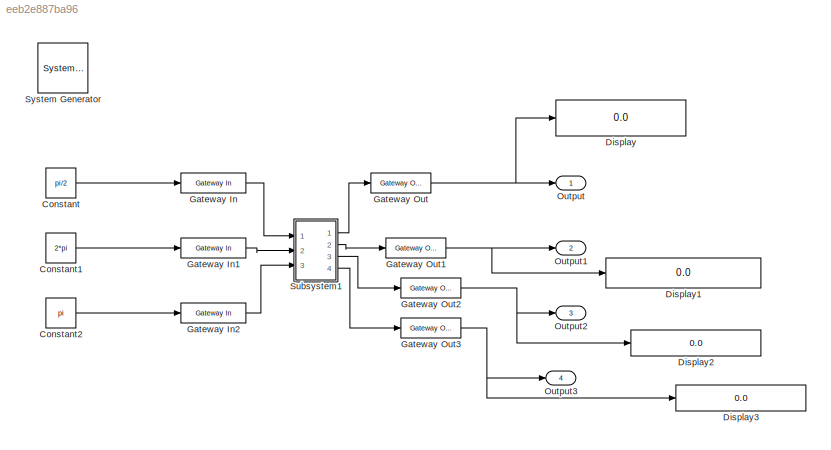
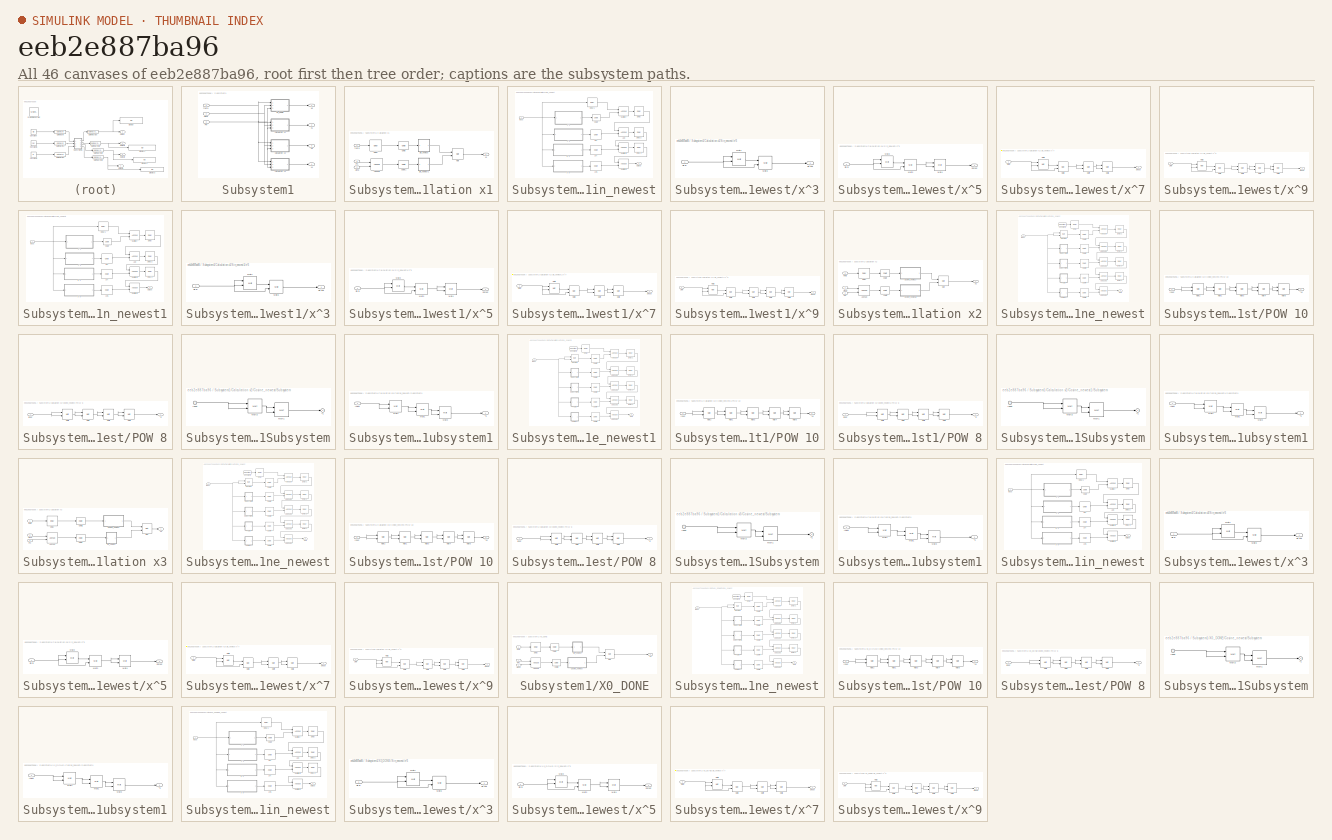
[diagram: thumbnail index - all 46 canvases of the model, root first then tree order]
MODEL slx_eeb2e887ba96
KIND model
CONFIG AbsTol = auto
CONFIG EnableMultiTasking = off
CONFIG FixedStep = auto
CONFIG MaxStep = auto
CONFIG MinStep = auto
CONFIG RelTol = 1e-3
CONFIG SampleTimeConstraint = Unconstrained
CONFIG Solver = VariableStepAuto
CONFIG SolverName = VariableStepAuto
CONFIG StartTime = 0.0
CONFIG StopTime = 500
BLOCK [Reference]  System Generator  REF=xbsIndex_r4/ System Generator
  AttributesFormatString = System\nGenerator
  Ports = []
  SourceBlock = xbsIndex_r4/ System Generator
  SourceType = Xilinx System Generator Block
  Tag = genX
  UserDataPersistent = on
BLOCK [Constant] Constant
  Value = pi/2
BLOCK [Constant] Constant1
  Value = 2*pi
BLOCK [Constant] Constant2
  Value = pi
BLOCK [Display] Display
  Decimation = 1
  Format = long
  Ports = [1]
BLOCK [Display] Display1
  Decimation = 1
  Format = long
  Ports = [1]
BLOCK [Display] Display2
  Decimation = 1
  Format = long
  Ports = [1]
BLOCK [Display] Display3
  Decimation = 1
  Format = long
  Ports = [1]
BLOCK [Reference] Gateway In  REF=xbsIndex_r4/Gateway In
  Ports = [1, 1]
  SourceBlock = xbsIndex_r4/Gateway In
  SourceType = Xilinx Gateway In Block
BLOCK [Reference] Gateway In1  REF=xbsIndex_r4/Gateway In
  Ports = [1, 1]
  SourceBlock = xbsIndex_r4/Gateway In
  SourceType = Xilinx Gateway In Block
BLOCK [Reference] Gateway In2  REF=xbsIndex_r4/Gateway In
  Ports = [1, 1]
  SourceBlock = xbsIndex_r4/Gateway In
  SourceType = Xilinx Gateway In Block
BLOCK [Reference] Gateway Out  REF=xbsIndex_r4/Gateway Out
  Ports = [1, 1]
  SourceBlock = xbsIndex_r4/Gateway Out
  SourceType = Xilinx Gateway Out Block
BLOCK [Reference] Gateway Out1  REF=xbsIndex_r4/Gateway Out
  Ports = [1, 1]
  SourceBlock = xbsIndex_r4/Gateway Out
  SourceType = Xilinx Gateway Out Block
BLOCK [Reference] Gateway Out2  REF=xbsIndex_r4/Gateway Out
  Ports = [1, 1]
  SourceBlock = xbsIndex_r4/Gateway Out
  SourceType = Xilinx Gateway Out Block
BLOCK [Reference] Gateway Out3  REF=xbsIndex_r4/Gateway Out
  Ports = [1, 1]
  SourceBlock = xbsIndex_r4/Gateway Out
  SourceType = Xilinx Gateway Out Block
BLOCK [Outport] Output
BLOCK [Outport] Output1
  Port = 2
BLOCK [Outport] Output2
  Port = 3
BLOCK [Outport] Output3
  Port = 4
BLOCK [SubSystem] Subsystem1
  Ports = [3, 4]
  RequestExecContextInheritance = off
BLOCK [Inport] Subsystem1/Alpha
  Port = 2
BLOCK [SubSystem] Subsystem1/Calculation x1
  Ports = [3, 1]
  RequestExecContextInheritance = off
BLOCK [Reference] Subsystem1/Calculation x1/AddSub  REF=xbsIndex_r4/AddSub
  Ports = [2, 1]
  SourceBlock = xbsIndex_r4/AddSub
  SourceType = Xilinx Adder/Subtracter Block
BLOCK [Inport] Subsystem1/Calculation x1/Alpha
  Port = 2
BLOCK [Reference] Subsystem1/Calculation x1/CMult  REF=xbsIndex_r4/CMult
  Ports = [1, 1]
  SourceBlock = xbsIndex_r4/CMult
  SourceType = Xilinx Constant Multiplier Block
BLOCK [Reference] Subsystem1/Calculation x1/CMult1  REF=xbsIndex_r4/CMult
  Ports = [1, 1]
  SourceBlock = xbsIndex_r4/CMult
  SourceType = Xilinx Constant Multiplier Block
BLOCK [Reference] Subsystem1/Calculation x1/Delay  REF=xbsIndex_r4/Delay
  Ports = [1, 1]
  SourceBlock = xbsIndex_r4/Delay
  SourceType = Xilinx Delay Block
BLOCK [Reference] Subsystem1/Calculation x1/Mult  REF=xbsIndex_r4/Mult
  Ports = [2, 1]
  SourceBlock = xbsIndex_r4/Mult
  SourceType = Xilinx Multiplier Block
BLOCK [Inport] Subsystem1/Calculation x1/Phi
  Port = 3
BLOCK [SubSystem] Subsystem1/Calculation x1/Sin_newest
  Ports = [1, 1]
  RequestExecContextInheritance = off
BLOCK [Reference] Subsystem1/Calculation x1/Sin_newest/1//5!  REF=xbsIndex_r4/CMult
  Ports = [1, 1]
  SourceBlock = xbsIndex_r4/CMult
  SourceType = Xilinx Constant Multiplier Block
BLOCK [Reference] Subsystem1/Calculation x1/Sin_newest/1//7!  REF=xbsIndex_r4/CMult
  Ports = [1, 1]
  SourceBlock = xbsIndex_r4/CMult
  SourceType = Xilinx Constant Multiplier Block
BLOCK [Reference] Subsystem1/Calculation x1/Sin_newest/1//7!1  REF=xbsIndex_r4/CMult
  Ports = [1, 1]
  SourceBlock = xbsIndex_r4/CMult
  SourceType = Xilinx Constant Multiplier Block
BLOCK [Reference] Subsystem1/Calculation x1/Sin_newest/Add  REF=xbsIndex_r4/AddSub
  Ports = [2, 1]
  SourceBlock = xbsIndex_r4/AddSub
  SourceType = Xilinx Adder/Subtracter Block
BLOCK [Reference] Subsystem1/Calculation x1/Sin_newest/CMult  REF=xbsIndex_r4/CMult
  Ports = [1, 1]
  SourceBlock = xbsIndex_r4/CMult
  SourceType = Xilinx Constant Multiplier Block
BLOCK [Reference] Subsystem1/Calculation x1/Sin_newest/Delay  REF=xbsIndex_r4/Delay
  Ports = [1, 1]
  SourceBlock = xbsIndex_r4/Delay
  SourceType = Xilinx Delay Block
BLOCK [Reference] Subsystem1/Calculation x1/Sin_newest/Delay1  REF=xbsIndex_r4/Delay
  Ports = [1, 1]
  SourceBlock = xbsIndex_r4/Delay
  SourceType = Xilinx Delay Block
BLOCK [Reference] Subsystem1/Calculation x1/Sin_newest/Delay2  REF=xbsIndex_r4/Delay
  Ports = [1, 1]
  SourceBlock = xbsIndex_r4/Delay
  SourceType = Xilinx Delay Block
BLOCK [Reference] Subsystem1/Calculation x1/Sin_newest/Delay3  REF=xbsIndex_r4/Delay
  Ports = [1, 1]
  SourceBlock = xbsIndex_r4/Delay
  SourceType = Xilinx Delay Block
BLOCK [Inport] Subsystem1/Calculation x1/Sin_newest/Input 
BLOCK [Outport] Subsystem1/Calculation x1/Sin_newest/Output
BLOCK [Reference] Subsystem1/Calculation x1/Sin_newest/Subtract  REF=xbsIndex_r4/AddSub
  Ports = [2, 1]
  SourceBlock = xbsIndex_r4/AddSub
  SourceType = Xilinx Adder/Subtracter Block
BLOCK [Reference] Subsystem1/Calculation x1/Sin_newest/Subtract1  REF=xbsIndex_r4/AddSub
  Ports = [2, 1]
  SourceBlock = xbsIndex_r4/AddSub
  SourceType = Xilinx Adder/Subtracter Block
BLOCK [Reference] Subsystem1/Calculation x1/Sin_newest/Subtract2  REF=xbsIndex_r4/AddSub
  Ports = [2, 1]
  SourceBlock = xbsIndex_r4/AddSub
  SourceType = Xilinx Adder/Subtracter Block
BLOCK [SubSystem] Subsystem1/Calculation x1/Sin_newest/x^3
  Ports = [1, 1]
  RequestExecContextInheritance = off
BLOCK [Reference] Subsystem1/Calculation x1/Sin_newest/x^3/Mult2  REF=xbsIndex_r4/Mult
  Ports = [2, 1]
  SourceBlock = xbsIndex_r4/Mult
  SourceType = Xilinx Multiplier Block
BLOCK [Reference] Subsystem1/Calculation x1/Sin_newest/x^3/Mult3  REF=xbsIndex_r4/Mult
  Ports = [2, 1]
  SourceBlock = xbsIndex_r4/Mult
  SourceType = Xilinx Multiplier Block
BLOCK [Inport] Subsystem1/Calculation x1/Sin_newest/x^3/Sin in
BLOCK [Outport] Subsystem1/Calculation x1/Sin_newest/x^3/sin out
BLOCK [SubSystem] Subsystem1/Calculation x1/Sin_newest/x^5
  Ports = [1, 1]
  RequestExecContextInheritance = off
BLOCK [Reference] Subsystem1/Calculation x1/Sin_newest/x^5/Mult2  REF=xbsIndex_r4/Mult
  Ports = [2, 1]
  SourceBlock = xbsIndex_r4/Mult
  SourceType = Xilinx Multiplier Block
BLOCK [Reference] Subsystem1/Calculation x1/Sin_newest/x^5/Mult3  REF=xbsIndex_r4/Mult
  Ports = [2, 1]
  SourceBlock = xbsIndex_r4/Mult
  SourceType = Xilinx Multiplier Block
BLOCK [Reference] Subsystem1/Calculation x1/Sin_newest/x^5/Mult4  REF=xbsIndex_r4/Mult
  Ports = [2, 1]
  SourceBlock = xbsIndex_r4/Mult
  SourceType = Xilinx Multiplier Block
BLOCK [Outport] Subsystem1/Calculation x1/Sin_newest/x^5/Output
BLOCK [Inport] Subsystem1/Calculation x1/Sin_newest/x^5/Sin in
BLOCK [SubSystem] Subsystem1/Calculation x1/Sin_newest/x^7
  Ports = [1, 1]
  RequestExecContextInheritance = off
BLOCK [Reference] Subsystem1/Calculation x1/Sin_newest/x^7/Mult1  REF=xbsIndex_r4/Mult
  Ports = [2, 1]
  SourceBlock = xbsIndex_r4/Mult
  SourceType = Xilinx Multiplier Block
BLOCK [Reference] Subsystem1/Calculation x1/Sin_newest/x^7/Mult2  REF=xbsIndex_r4/Mult
  Ports = [2, 1]
  SourceBlock = xbsIndex_r4/Mult
  SourceType = Xilinx Multiplier Block
BLOCK [Reference] Subsystem1/Calculation x1/Sin_newest/x^7/Mult3  REF=xbsIndex_r4/Mult
  Ports = [2, 1]
  SourceBlock = xbsIndex_r4/Mult
  SourceType = Xilinx Multiplier Block
BLOCK [Reference] Subsystem1/Calculation x1/Sin_newest/x^7/Mult4  REF=xbsIndex_r4/Mult
  Ports = [2, 1]
  SourceBlock = xbsIndex_r4/Mult
  SourceType = Xilinx Multiplier Block
BLOCK [Inport] Subsystem1/Calculation x1/Sin_newest/x^7/Sin in
BLOCK [Outport] Subsystem1/Calculation x1/Sin_newest/x^7/sin out
BLOCK [SubSystem] Subsystem1/Calculation x1/Sin_newest/x^9
  Ports = [1, 1]
  RequestExecContextInheritance = off
BLOCK [Reference] Subsystem1/Calculation x1/Sin_newest/x^9/Mult1  REF=xbsIndex_r4/Mult
  Ports = [2, 1]
  SourceBlock = xbsIndex_r4/Mult
  SourceType = Xilinx Multiplier Block
BLOCK [Reference] Subsystem1/Calculation x1/Sin_newest/x^9/Mult2  REF=xbsIndex_r4/Mult
  Ports = [2, 1]
  SourceBlock = xbsIndex_r4/Mult
  SourceType = Xilinx Multiplier Block
BLOCK [Reference] Subsystem1/Calculation x1/Sin_newest/x^9/Mult3  REF=xbsIndex_r4/Mult
  Ports = [2, 1]
  SourceBlock = xbsIndex_r4/Mult
  SourceType = Xilinx Multiplier Block
BLOCK [Reference] Subsystem1/Calculation x1/Sin_newest/x^9/Mult4  REF=xbsIndex_r4/Mult
  Ports = [2, 1]
  SourceBlock = xbsIndex_r4/Mult
  SourceType = Xilinx Multiplier Block
BLOCK [Reference] Subsystem1/Calculation x1/Sin_newest/x^9/Mult5  REF=xbsIndex_r4/Mult
  Ports = [2, 1]
  SourceBlock = xbsIndex_r4/Mult
  SourceType = Xilinx Multiplier Block
BLOCK [Inport] Subsystem1/Calculation x1/Sin_newest/x^9/Sin in
BLOCK [Outport] Subsystem1/Calculation x1/Sin_newest/x^9/sin out
BLOCK [SubSystem] Subsystem1/Calculation x1/Sin_newest1
  Ports = [1, 1]
  RequestExecContextInheritance = off
BLOCK [Reference] Subsystem1/Calculation x1/Sin_newest1/1//5!  REF=xbsIndex_r4/CMult
  Ports = [1, 1]
  SourceBlock = xbsIndex_r4/CMult
  SourceType = Xilinx Constant Multiplier Block
BLOCK [Reference] Subsystem1/Calculation x1/Sin_newest1/1//7!  REF=xbsIndex_r4/CMult
  Ports = [1, 1]
  SourceBlock = xbsIndex_r4/CMult
  SourceType = Xilinx Constant Multiplier Block
BLOCK [Reference] Subsystem1/Calculation x1/Sin_newest1/1//7!1  REF=xbsIndex_r4/CMult
  Ports = [1, 1]
  SourceBlock = xbsIndex_r4/CMult
  SourceType = Xilinx Constant Multiplier Block
BLOCK [Reference] Subsystem1/Calculation x1/Sin_newest1/Add  REF=xbsIndex_r4/AddSub
  Ports = [2, 1]
  SourceBlock = xbsIndex_r4/AddSub
  SourceType = Xilinx Adder/Subtracter Block
BLOCK [Reference] Subsystem1/Calculation x1/Sin_newest1/CMult  REF=xbsIndex_r4/CMult
  Ports = [1, 1]
  SourceBlock = xbsIndex_r4/CMult
  SourceType = Xilinx Constant Multiplier Block
BLOCK [Reference] Subsystem1/Calculation x1/Sin_newest1/Delay  REF=xbsIndex_r4/Delay
  Ports = [1, 1]
  SourceBlock = xbsIndex_r4/Delay
  SourceType = Xilinx Delay Block
BLOCK [Reference] Subsystem1/Calculation x1/Sin_newest1/Delay1  REF=xbsIndex_r4/Delay
  Ports = [1, 1]
  SourceBlock = xbsIndex_r4/Delay
  SourceType = Xilinx Delay Block
BLOCK [Reference] Subsystem1/Calculation x1/Sin_newest1/Delay2  REF=xbsIndex_r4/Delay
  Ports = [1, 1]
  SourceBlock = xbsIndex_r4/Delay
  SourceType = Xilinx Delay Block
BLOCK [Reference] Subsystem1/Calculation x1/Sin_newest1/Delay3  REF=xbsIndex_r4/Delay
  Ports = [1, 1]
  SourceBlock = xbsIndex_r4/Delay
  SourceType = Xilinx Delay Block
BLOCK [Inport] Subsystem1/Calculation x1/Sin_newest1/Input 
BLOCK [Outport] Subsystem1/Calculation x1/Sin_newest1/Output
BLOCK [Reference] Subsystem1/Calculation x1/Sin_newest1/Subtract  REF=xbsIndex_r4/AddSub
  Ports = [2, 1]
  SourceBlock = xbsIndex_r4/AddSub
  SourceType = Xilinx Adder/Subtracter Block
BLOCK [Reference] Subsystem1/Calculation x1/Sin_newest1/Subtract1  REF=xbsIndex_r4/AddSub
  Ports = [2, 1]
  SourceBlock = xbsIndex_r4/AddSub
  SourceType = Xilinx Adder/Subtracter Block
BLOCK [Reference] Subsystem1/Calculation x1/Sin_newest1/Subtract2  REF=xbsIndex_r4/AddSub
  Ports = [2, 1]
  SourceBlock = xbsIndex_r4/AddSub
  SourceType = Xilinx Adder/Subtracter Block
BLOCK [SubSystem] Subsystem1/Calculation x1/Sin_newest1/x^3
  Ports = [1, 1]
  RequestExecContextInheritance = off
BLOCK [Reference] Subsystem1/Calculation x1/Sin_newest1/x^3/Mult2  REF=xbsIndex_r4/Mult
  Ports = [2, 1]
  SourceBlock = xbsIndex_r4/Mult
  SourceType = Xilinx Multiplier Block
BLOCK [Reference] Subsystem1/Calculation x1/Sin_newest1/x^3/Mult3  REF=xbsIndex_r4/Mult
  Ports = [2, 1]
  SourceBlock = xbsIndex_r4/Mult
  SourceType = Xilinx Multiplier Block
BLOCK [Inport] Subsystem1/Calculation x1/Sin_newest1/x^3/Sin in
BLOCK [Outport] Subsystem1/Calculation x1/Sin_newest1/x^3/sin out
BLOCK [SubSystem] Subsystem1/Calculation x1/Sin_newest1/x^5
  Ports = [1, 1]
  RequestExecContextInheritance = off
BLOCK [Reference] Subsystem1/Calculation x1/Sin_newest1/x^5/Mult2  REF=xbsIndex_r4/Mult
  Ports = [2, 1]
  SourceBlock = xbsIndex_r4/Mult
  SourceType = Xilinx Multiplier Block
BLOCK [Reference] Subsystem1/Calculation x1/Sin_newest1/x^5/Mult3  REF=xbsIndex_r4/Mult
  Ports = [2, 1]
  SourceBlock = xbsIndex_r4/Mult
  SourceType = Xilinx Multiplier Block
BLOCK [Reference] Subsystem1/Calculation x1/Sin_newest1/x^5/Mult4  REF=xbsIndex_r4/Mult
  Ports = [2, 1]
  SourceBlock = xbsIndex_r4/Mult
  SourceType = Xilinx Multiplier Block
BLOCK [Outport] Subsystem1/Calculation x1/Sin_newest1/x^5/Output
BLOCK [Inport] Subsystem1/Calculation x1/Sin_newest1/x^5/Sin in
BLOCK [SubSystem] Subsystem1/Calculation x1/Sin_newest1/x^7
  Ports = [1, 1]
  RequestExecContextInheritance = off
BLOCK [Reference] Subsystem1/Calculation x1/Sin_newest1/x^7/Mult1  REF=xbsIndex_r4/Mult
  Ports = [2, 1]
  SourceBlock = xbsIndex_r4/Mult
  SourceType = Xilinx Multiplier Block
BLOCK [Reference] Subsystem1/Calculation x1/Sin_newest1/x^7/Mult2  REF=xbsIndex_r4/Mult
  Ports = [2, 1]
  SourceBlock = xbsIndex_r4/Mult
  SourceType = Xilinx Multiplier Block
BLOCK [Reference] Subsystem1/Calculation x1/Sin_newest1/x^7/Mult3  REF=xbsIndex_r4/Mult
  Ports = [2, 1]
  SourceBlock = xbsIndex_r4/Mult
  SourceType = Xilinx Multiplier Block
BLOCK [Reference] Subsystem1/Calculation x1/Sin_newest1/x^7/Mult4  REF=xbsIndex_r4/Mult
  Ports = [2, 1]
  SourceBlock = xbsIndex_r4/Mult
  SourceType = Xilinx Multiplier Block
BLOCK [Inport] Subsystem1/Calculation x1/Sin_newest1/x^7/Sin in
BLOCK [Outport] Subsystem1/Calculation x1/Sin_newest1/x^7/sin out
BLOCK [SubSystem] Subsystem1/Calculation x1/Sin_newest1/x^9
  Ports = [1, 1]
  RequestExecContextInheritance = off
BLOCK [Reference] Subsystem1/Calculation x1/Sin_newest1/x^9/Mult1  REF=xbsIndex_r4/Mult
  Ports = [2, 1]
  SourceBlock = xbsIndex_r4/Mult
  SourceType = Xilinx Multiplier Block
BLOCK [Reference] Subsystem1/Calculation x1/Sin_newest1/x^9/Mult2  REF=xbsIndex_r4/Mult
  Ports = [2, 1]
  SourceBlock = xbsIndex_r4/Mult
  SourceType = Xilinx Multiplier Block
BLOCK [Reference] Subsystem1/Calculation x1/Sin_newest1/x^9/Mult3  REF=xbsIndex_r4/Mult
  Ports = [2, 1]
  SourceBlock = xbsIndex_r4/Mult
  SourceType = Xilinx Multiplier Block
BLOCK [Reference] Subsystem1/Calculation x1/Sin_newest1/x^9/Mult4  REF=xbsIndex_r4/Mult
  Ports = [2, 1]
  SourceBlock = xbsIndex_r4/Mult
  SourceType = Xilinx Multiplier Block
BLOCK [Reference] Subsystem1/Calculation x1/Sin_newest1/x^9/Mult5  REF=xbsIndex_r4/Mult
  Ports = [2, 1]
  SourceBlock = xbsIndex_r4/Mult
  SourceType = Xilinx Multiplier Block
BLOCK [Inport] Subsystem1/Calculation x1/Sin_newest1/x^9/Sin in
BLOCK [Outport] Subsystem1/Calculation x1/Sin_newest1/x^9/sin out
BLOCK [Outport] Subsystem1/Calculation x1/X1
BLOCK [Inport] Subsystem1/Calculation x1/theta
BLOCK [SubSystem] Subsystem1/Calculation x2
  Ports = [3, 1]
  RequestExecContextInheritance = off
BLOCK [Reference] Subsystem1/Calculation x2/AddSub  REF=xbsIndex_r4/AddSub
  Ports = [2, 1]
  SourceBlock = xbsIndex_r4/AddSub
  SourceType = Xilinx Adder/Subtracter Block
BLOCK [Inport] Subsystem1/Calculation x2/Alpha
  Port = 2
BLOCK [Reference] Subsystem1/Calculation x2/CMult  REF=xbsIndex_r4/CMult
  Ports = [1, 1]
  SourceBlock = xbsIndex_r4/CMult
  SourceType = Xilinx Constant Multiplier Block
BLOCK [Reference] Subsystem1/Calculation x2/CMult1  REF=xbsIndex_r4/CMult
  Ports = [1, 1]
  SourceBlock = xbsIndex_r4/CMult
  SourceType = Xilinx Constant Multiplier Block
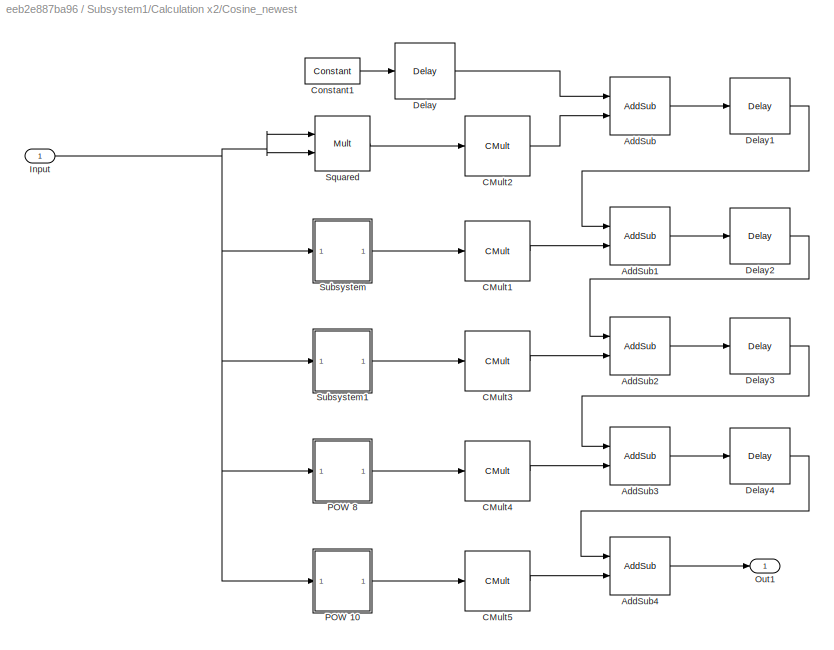
BLOCK [SubSystem] Subsystem1/Calculation x2/Cosine_newest
  Ports = [1, 1]
  RequestExecContextInheritance = off
BLOCK [Reference] Subsystem1/Calculation x2/Cosine_newest/AddSub  REF=xbsIndex_r4/AddSub
  Ports = [2, 1]
  SourceBlock = xbsIndex_r4/AddSub
  SourceType = Xilinx Adder/Subtracter Block
BLOCK [Reference] Subsystem1/Calculation x2/Cosine_newest/AddSub1  REF=xbsIndex_r4/AddSub
  Ports = [2, 1]
  SourceBlock = xbsIndex_r4/AddSub
  SourceType = Xilinx Adder/Subtracter Block
BLOCK [Reference] Subsystem1/Calculation x2/Cosine_newest/AddSub2  REF=xbsIndex_r4/AddSub
  Ports = [2, 1]
  SourceBlock = xbsIndex_r4/AddSub
  SourceType = Xilinx Adder/Subtracter Block
BLOCK [Reference] Subsystem1/Calculation x2/Cosine_newest/AddSub3  REF=xbsIndex_r4/AddSub
  Ports = [2, 1]
  SourceBlock = xbsIndex_r4/AddSub
  SourceType = Xilinx Adder/Subtracter Block
BLOCK [Reference] Subsystem1/Calculation x2/Cosine_newest/AddSub4  REF=xbsIndex_r4/AddSub
  Ports = [2, 1]
  SourceBlock = xbsIndex_r4/AddSub
  SourceType = Xilinx Adder/Subtracter Block
BLOCK [Reference] Subsystem1/Calculation x2/Cosine_newest/CMult1  REF=xbsIndex_r4/CMult
  Ports = [1, 1]
  SourceBlock = xbsIndex_r4/CMult
  SourceType = Xilinx Constant Multiplier Block
BLOCK [Reference] Subsystem1/Calculation x2/Cosine_newest/CMult2  REF=xbsIndex_r4/CMult
  Ports = [1, 1]
  SourceBlock = xbsIndex_r4/CMult
  SourceType = Xilinx Constant Multiplier Block
BLOCK [Reference] Subsystem1/Calculation x2/Cosine_newest/CMult3  REF=xbsIndex_r4/CMult
  Ports = [1, 1]
  SourceBlock = xbsIndex_r4/CMult
  SourceType = Xilinx Constant Multiplier Block
BLOCK [Reference] Subsystem1/Calculation x2/Cosine_newest/CMult4  REF=xbsIndex_r4/CMult
  Ports = [1, 1]
  SourceBlock = xbsIndex_r4/CMult
  SourceType = Xilinx Constant Multiplier Block
BLOCK [Reference] Subsystem1/Calculation x2/Cosine_newest/CMult5  REF=xbsIndex_r4/CMult
  Ports = [1, 1]
  SourceBlock = xbsIndex_r4/CMult
  SourceType = Xilinx Constant Multiplier Block
BLOCK [Reference] Subsystem1/Calculation x2/Cosine_newest/Constant1  REF=xbsIndex_r4/Constant
  Ports = [0, 1]
  SourceBlock = xbsIndex_r4/Constant
  SourceType = Xilinx Constant Block Block
BLOCK [Reference] Subsystem1/Calculation x2/Cosine_newest/Delay  REF=xbsIndex_r4/Delay
  Ports = [1, 1]
  SourceBlock = xbsIndex_r4/Delay
  SourceType = Xilinx Delay Block
BLOCK [Reference] Subsystem1/Calculation x2/Cosine_newest/Delay1  REF=xbsIndex_r4/Delay
  Ports = [1, 1]
  SourceBlock = xbsIndex_r4/Delay
  SourceType = Xilinx Delay Block
BLOCK [Reference] Subsystem1/Calculation x2/Cosine_newest/Delay2  REF=xbsIndex_r4/Delay
  Ports = [1, 1]
  SourceBlock = xbsIndex_r4/Delay
  SourceType = Xilinx Delay Block
BLOCK [Reference] Subsystem1/Calculation x2/Cosine_newest/Delay3  REF=xbsIndex_r4/Delay
  Ports = [1, 1]
  SourceBlock = xbsIndex_r4/Delay
  SourceType = Xilinx Delay Block
BLOCK [Reference] Subsystem1/Calculation x2/Cosine_newest/Delay4  REF=xbsIndex_r4/Delay
  Ports = [1, 1]
  SourceBlock = xbsIndex_r4/Delay
  SourceType = Xilinx Delay Block
BLOCK [Inport] Subsystem1/Calculation x2/Cosine_newest/Input
BLOCK [Outport] Subsystem1/Calculation x2/Cosine_newest/Out1
BLOCK [SubSystem] Subsystem1/Calculation x2/Cosine_newest/POW 10
  Ports = [1, 1]
  RequestExecContextInheritance = off
BLOCK [Inport] Subsystem1/Calculation x2/Cosine_newest/POW 10/Input
BLOCK [Reference] Subsystem1/Calculation x2/Cosine_newest/POW 10/Mult1  REF=xbsIndex_r4/Mult
  Ports = [2, 1]
  SourceBlock = xbsIndex_r4/Mult
  SourceType = Xilinx Multiplier Block
BLOCK [Reference] Subsystem1/Calculation x2/Cosine_newest/POW 10/Mult2  REF=xbsIndex_r4/Mult
  Ports = [2, 1]
  SourceBlock = xbsIndex_r4/Mult
  SourceType = Xilinx Multiplier Block
BLOCK [Reference] Subsystem1/Calculation x2/Cosine_newest/POW 10/Mult3  REF=xbsIndex_r4/Mult
  Ports = [2, 1]
  SourceBlock = xbsIndex_r4/Mult
  SourceType = Xilinx Multiplier Block
BLOCK [Reference] Subsystem1/Calculation x2/Cosine_newest/POW 10/Mult4  REF=xbsIndex_r4/Mult
  Ports = [2, 1]
  SourceBlock = xbsIndex_r4/Mult
  SourceType = Xilinx Multiplier Block
BLOCK [Reference] Subsystem1/Calculation x2/Cosine_newest/POW 10/Mult5  REF=xbsIndex_r4/Mult
  Ports = [2, 1]
  SourceBlock = xbsIndex_r4/Mult
  SourceType = Xilinx Multiplier Block
BLOCK [Outport] Subsystem1/Calculation x2/Cosine_newest/POW 10/^10
BLOCK [SubSystem] Subsystem1/Calculation x2/Cosine_newest/POW 8
  Ports = [1, 1]
  RequestExecContextInheritance = off
BLOCK [Inport] Subsystem1/Calculation x2/Cosine_newest/POW 8/Input
BLOCK [Reference] Subsystem1/Calculation x2/Cosine_newest/POW 8/Mult1  REF=xbsIndex_r4/Mult
  Ports = [2, 1]
  SourceBlock = xbsIndex_r4/Mult
  SourceType = Xilinx Multiplier Block
BLOCK [Reference] Subsystem1/Calculation x2/Cosine_newest/POW 8/Mult2  REF=xbsIndex_r4/Mult
  Ports = [2, 1]
  SourceBlock = xbsIndex_r4/Mult
  SourceType = Xilinx Multiplier Block
BLOCK [Reference] Subsystem1/Calculation x2/Cosine_newest/POW 8/Mult3  REF=xbsIndex_r4/Mult
  Ports = [2, 1]
  SourceBlock = xbsIndex_r4/Mult
  SourceType = Xilinx Multiplier Block
BLOCK [Reference] Subsystem1/Calculation x2/Cosine_newest/POW 8/Mult4  REF=xbsIndex_r4/Mult
  Ports = [2, 1]
  SourceBlock = xbsIndex_r4/Mult
  SourceType = Xilinx Multiplier Block
BLOCK [Outport] Subsystem1/Calculation x2/Cosine_newest/POW 8/^8
BLOCK [Reference] Subsystem1/Calculation x2/Cosine_newest/Squared  REF=xbsIndex_r4/Mult
  Ports = [2, 1]
  SourceBlock = xbsIndex_r4/Mult
  SourceType = Xilinx Multiplier Block
BLOCK [SubSystem] Subsystem1/Calculation x2/Cosine_newest/Subsystem
  Ports = [1, 1]
  RequestExecContextInheritance = off
BLOCK [Inport] Subsystem1/Calculation x2/Cosine_newest/Subsystem/Input
BLOCK [Reference] Subsystem1/Calculation x2/Cosine_newest/Subsystem/Mult1  REF=xbsIndex_r4/Mult
  Ports = [2, 1]
  SourceBlock = xbsIndex_r4/Mult
  SourceType = Xilinx Multiplier Block
BLOCK [Reference] Subsystem1/Calculation x2/Cosine_newest/Subsystem/Mult2  REF=xbsIndex_r4/Mult
  Ports = [2, 1]
  SourceBlock = xbsIndex_r4/Mult
  SourceType = Xilinx Multiplier Block
BLOCK [Outport] Subsystem1/Calculation x2/Cosine_newest/Subsystem/^4
BLOCK [SubSystem] Subsystem1/Calculation x2/Cosine_newest/Subsystem1
  Ports = [1, 1]
  RequestExecContextInheritance = off
BLOCK [Inport] Subsystem1/Calculation x2/Cosine_newest/Subsystem1/Input
BLOCK [Reference] Subsystem1/Calculation x2/Cosine_newest/Subsystem1/Mult1  REF=xbsIndex_r4/Mult
  Ports = [2, 1]
  SourceBlock = xbsIndex_r4/Mult
  SourceType = Xilinx Multiplier Block
BLOCK [Reference] Subsystem1/Calculation x2/Cosine_newest/Subsystem1/Mult2  REF=xbsIndex_r4/Mult
  Ports = [2, 1]
  SourceBlock = xbsIndex_r4/Mult
  SourceType = Xilinx Multiplier Block
BLOCK [Reference] Subsystem1/Calculation x2/Cosine_newest/Subsystem1/Mult3  REF=xbsIndex_r4/Mult
  Ports = [2, 1]
  SourceBlock = xbsIndex_r4/Mult
  SourceType = Xilinx Multiplier Block
BLOCK [Outport] Subsystem1/Calculation x2/Cosine_newest/Subsystem1/^6
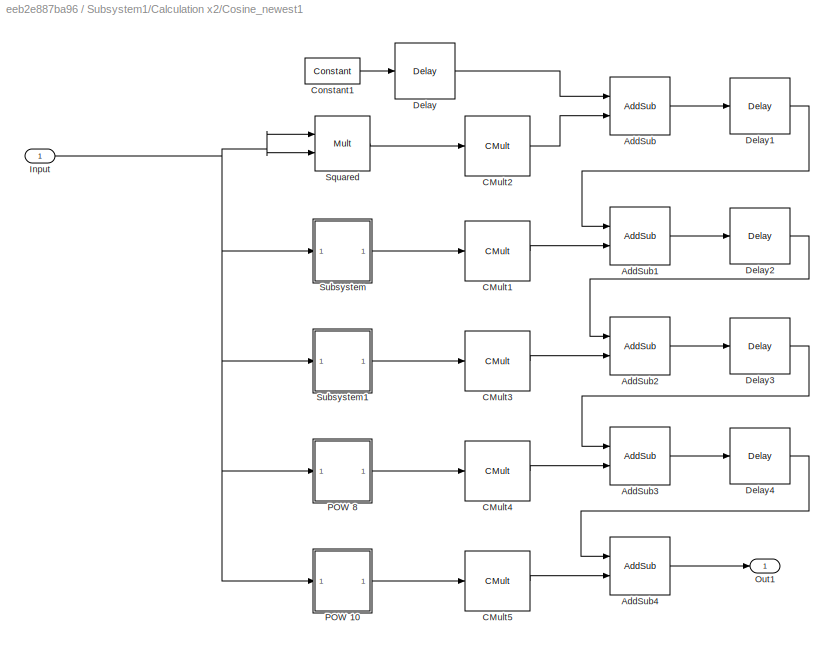
BLOCK [SubSystem] Subsystem1/Calculation x2/Cosine_newest1
  Ports = [1, 1]
  RequestExecContextInheritance = off
BLOCK [Reference] Subsystem1/Calculation x2/Cosine_newest1/AddSub  REF=xbsIndex_r4/AddSub
  Ports = [2, 1]
  SourceBlock = xbsIndex_r4/AddSub
  SourceType = Xilinx Adder/Subtracter Block
BLOCK [Reference] Subsystem1/Calculation x2/Cosine_newest1/AddSub1  REF=xbsIndex_r4/AddSub
  Ports = [2, 1]
  SourceBlock = xbsIndex_r4/AddSub
  SourceType = Xilinx Adder/Subtracter Block
BLOCK [Reference] Subsystem1/Calculation x2/Cosine_newest1/AddSub2  REF=xbsIndex_r4/AddSub
  Ports = [2, 1]
  SourceBlock = xbsIndex_r4/AddSub
  SourceType = Xilinx Adder/Subtracter Block
BLOCK [Reference] Subsystem1/Calculation x2/Cosine_newest1/AddSub3  REF=xbsIndex_r4/AddSub
  Ports = [2, 1]
  SourceBlock = xbsIndex_r4/AddSub
  SourceType = Xilinx Adder/Subtracter Block
BLOCK [Reference] Subsystem1/Calculation x2/Cosine_newest1/AddSub4  REF=xbsIndex_r4/AddSub
  Ports = [2, 1]
  SourceBlock = xbsIndex_r4/AddSub
  SourceType = Xilinx Adder/Subtracter Block
BLOCK [Reference] Subsystem1/Calculation x2/Cosine_newest1/CMult1  REF=xbsIndex_r4/CMult
  Ports = [1, 1]
  SourceBlock = xbsIndex_r4/CMult
  SourceType = Xilinx Constant Multiplier Block
BLOCK [Reference] Subsystem1/Calculation x2/Cosine_newest1/CMult2  REF=xbsIndex_r4/CMult
  Ports = [1, 1]
  SourceBlock = xbsIndex_r4/CMult
  SourceType = Xilinx Constant Multiplier Block
BLOCK [Reference] Subsystem1/Calculation x2/Cosine_newest1/CMult3  REF=xbsIndex_r4/CMult
  Ports = [1, 1]
  SourceBlock = xbsIndex_r4/CMult
  SourceType = Xilinx Constant Multiplier Block
BLOCK [Reference] Subsystem1/Calculation x2/Cosine_newest1/CMult4  REF=xbsIndex_r4/CMult
  Ports = [1, 1]
  SourceBlock = xbsIndex_r4/CMult
  SourceType = Xilinx Constant Multiplier Block
BLOCK [Reference] Subsystem1/Calculation x2/Cosine_newest1/CMult5  REF=xbsIndex_r4/CMult
  Ports = [1, 1]
  SourceBlock = xbsIndex_r4/CMult
  SourceType = Xilinx Constant Multiplier Block
BLOCK [Reference] Subsystem1/Calculation x2/Cosine_newest1/Constant1  REF=xbsIndex_r4/Constant
  Ports = [0, 1]
  SourceBlock = xbsIndex_r4/Constant
  SourceType = Xilinx Constant Block Block
BLOCK [Reference] Subsystem1/Calculation x2/Cosine_newest1/Delay  REF=xbsIndex_r4/Delay
  Ports = [1, 1]
  SourceBlock = xbsIndex_r4/Delay
  SourceType = Xilinx Delay Block
BLOCK [Reference] Subsystem1/Calculation x2/Cosine_newest1/Delay1  REF=xbsIndex_r4/Delay
  Ports = [1, 1]
  SourceBlock = xbsIndex_r4/Delay
  SourceType = Xilinx Delay Block
BLOCK [Reference] Subsystem1/Calculation x2/Cosine_newest1/Delay2  REF=xbsIndex_r4/Delay
  Ports = [1, 1]
  SourceBlock = xbsIndex_r4/Delay
  SourceType = Xilinx Delay Block
BLOCK [Reference] Subsystem1/Calculation x2/Cosine_newest1/Delay3  REF=xbsIndex_r4/Delay
  Ports = [1, 1]
  SourceBlock = xbsIndex_r4/Delay
  SourceType = Xilinx Delay Block
BLOCK [Reference] Subsystem1/Calculation x2/Cosine_newest1/Delay4  REF=xbsIndex_r4/Delay
  Ports = [1, 1]
  SourceBlock = xbsIndex_r4/Delay
  SourceType = Xilinx Delay Block
BLOCK [Inport] Subsystem1/Calculation x2/Cosine_newest1/Input
BLOCK [Outport] Subsystem1/Calculation x2/Cosine_newest1/Out1
BLOCK [SubSystem] Subsystem1/Calculation x2/Cosine_newest1/POW 10
  Ports = [1, 1]
  RequestExecContextInheritance = off
BLOCK [Inport] Subsystem1/Calculation x2/Cosine_newest1/POW 10/Input
BLOCK [Reference] Subsystem1/Calculation x2/Cosine_newest1/POW 10/Mult1  REF=xbsIndex_r4/Mult
  Ports = [2, 1]
  SourceBlock = xbsIndex_r4/Mult
  SourceType = Xilinx Multiplier Block
BLOCK [Reference] Subsystem1/Calculation x2/Cosine_newest1/POW 10/Mult2  REF=xbsIndex_r4/Mult
  Ports = [2, 1]
  SourceBlock = xbsIndex_r4/Mult
  SourceType = Xilinx Multiplier Block
BLOCK [Reference] Subsystem1/Calculation x2/Cosine_newest1/POW 10/Mult3  REF=xbsIndex_r4/Mult
  Ports = [2, 1]
  SourceBlock = xbsIndex_r4/Mult
  SourceType = Xilinx Multiplier Block
BLOCK [Reference] Subsystem1/Calculation x2/Cosine_newest1/POW 10/Mult4  REF=xbsIndex_r4/Mult
  Ports = [2, 1]
  SourceBlock = xbsIndex_r4/Mult
  SourceType = Xilinx Multiplier Block
BLOCK [Reference] Subsystem1/Calculation x2/Cosine_newest1/POW 10/Mult5  REF=xbsIndex_r4/Mult
  Ports = [2, 1]
  SourceBlock = xbsIndex_r4/Mult
  SourceType = Xilinx Multiplier Block
BLOCK [Outport] Subsystem1/Calculation x2/Cosine_newest1/POW 10/^10
BLOCK [SubSystem] Subsystem1/Calculation x2/Cosine_newest1/POW 8
  Ports = [1, 1]
  RequestExecContextInheritance = off
BLOCK [Inport] Subsystem1/Calculation x2/Cosine_newest1/POW 8/Input
BLOCK [Reference] Subsystem1/Calculation x2/Cosine_newest1/POW 8/Mult1  REF=xbsIndex_r4/Mult
  Ports = [2, 1]
  SourceBlock = xbsIndex_r4/Mult
  SourceType = Xilinx Multiplier Block
BLOCK [Reference] Subsystem1/Calculation x2/Cosine_newest1/POW 8/Mult2  REF=xbsIndex_r4/Mult
  Ports = [2, 1]
  SourceBlock = xbsIndex_r4/Mult
  SourceType = Xilinx Multiplier Block
BLOCK [Reference] Subsystem1/Calculation x2/Cosine_newest1/POW 8/Mult3  REF=xbsIndex_r4/Mult
  Ports = [2, 1]
  SourceBlock = xbsIndex_r4/Mult
  SourceType = Xilinx Multiplier Block
BLOCK [Reference] Subsystem1/Calculation x2/Cosine_newest1/POW 8/Mult4  REF=xbsIndex_r4/Mult
  Ports = [2, 1]
  SourceBlock = xbsIndex_r4/Mult
  SourceType = Xilinx Multiplier Block
BLOCK [Outport] Subsystem1/Calculation x2/Cosine_newest1/POW 8/^8
BLOCK [Reference] Subsystem1/Calculation x2/Cosine_newest1/Squared  REF=xbsIndex_r4/Mult
  Ports = [2, 1]
  SourceBlock = xbsIndex_r4/Mult
  SourceType = Xilinx Multiplier Block
BLOCK [SubSystem] Subsystem1/Calculation x2/Cosine_newest1/Subsystem
  Ports = [1, 1]
  RequestExecContextInheritance = off
BLOCK [Inport] Subsystem1/Calculation x2/Cosine_newest1/Subsystem/Input
BLOCK [Reference] Subsystem1/Calculation x2/Cosine_newest1/Subsystem/Mult1  REF=xbsIndex_r4/Mult
  Ports = [2, 1]
  SourceBlock = xbsIndex_r4/Mult
  SourceType = Xilinx Multiplier Block
BLOCK [Reference] Subsystem1/Calculation x2/Cosine_newest1/Subsystem/Mult2  REF=xbsIndex_r4/Mult
  Ports = [2, 1]
  SourceBlock = xbsIndex_r4/Mult
  SourceType = Xilinx Multiplier Block
BLOCK [Outport] Subsystem1/Calculation x2/Cosine_newest1/Subsystem/^4
BLOCK [SubSystem] Subsystem1/Calculation x2/Cosine_newest1/Subsystem1
  Ports = [1, 1]
  RequestExecContextInheritance = off
BLOCK [Inport] Subsystem1/Calculation x2/Cosine_newest1/Subsystem1/Input
BLOCK [Reference] Subsystem1/Calculation x2/Cosine_newest1/Subsystem1/Mult1  REF=xbsIndex_r4/Mult
  Ports = [2, 1]
  SourceBlock = xbsIndex_r4/Mult
  SourceType = Xilinx Multiplier Block
BLOCK [Reference] Subsystem1/Calculation x2/Cosine_newest1/Subsystem1/Mult2  REF=xbsIndex_r4/Mult
  Ports = [2, 1]
  SourceBlock = xbsIndex_r4/Mult
  SourceType = Xilinx Multiplier Block
BLOCK [Reference] Subsystem1/Calculation x2/Cosine_newest1/Subsystem1/Mult3  REF=xbsIndex_r4/Mult
  Ports = [2, 1]
  SourceBlock = xbsIndex_r4/Mult
  SourceType = Xilinx Multiplier Block
BLOCK [Outport] Subsystem1/Calculation x2/Cosine_newest1/Subsystem1/^6
BLOCK [Reference] Subsystem1/Calculation x2/Delay  REF=xbsIndex_r4/Delay
  Ports = [1, 1]
  SourceBlock = xbsIndex_r4/Delay
  SourceType = Xilinx Delay Block
BLOCK [Reference] Subsystem1/Calculation x2/Mult  REF=xbsIndex_r4/Mult
  Ports = [2, 1]
  SourceBlock = xbsIndex_r4/Mult
  SourceType = Xilinx Multiplier Block
BLOCK [Inport] Subsystem1/Calculation x2/Phi
  Port = 3
BLOCK [Outport] Subsystem1/Calculation x2/X2
BLOCK [Inport] Subsystem1/Calculation x2/theta
BLOCK [SubSystem] Subsystem1/Calculation x3
  Ports = [3, 1]
  RequestExecContextInheritance = off
BLOCK [Reference] Subsystem1/Calculation x3/AddSub  REF=xbsIndex_r4/AddSub
  Ports = [2, 1]
  SourceBlock = xbsIndex_r4/AddSub
  SourceType = Xilinx Adder/Subtracter Block
BLOCK [Inport] Subsystem1/Calculation x3/Alpha
  Port = 2
BLOCK [Reference] Subsystem1/Calculation x3/CMult  REF=xbsIndex_r4/CMult
  Ports = [1, 1]
  SourceBlock = xbsIndex_r4/CMult
  SourceType = Xilinx Constant Multiplier Block
BLOCK [Reference] Subsystem1/Calculation x3/CMult1  REF=xbsIndex_r4/CMult
  Ports = [1, 1]
  SourceBlock = xbsIndex_r4/CMult
  SourceType = Xilinx Constant Multiplier Block
BLOCK [SubSystem] Subsystem1/Calculation x3/Cosine_newest
  Ports = [1, 1]
  RequestExecContextInheritance = off
BLOCK [Reference] Subsystem1/Calculation x3/Cosine_newest/AddSub  REF=xbsIndex_r4/AddSub
  Ports = [2, 1]
  SourceBlock = xbsIndex_r4/AddSub
  SourceType = Xilinx Adder/Subtracter Block
BLOCK [Reference] Subsystem1/Calculation x3/Cosine_newest/AddSub1  REF=xbsIndex_r4/AddSub
  Ports = [2, 1]
  SourceBlock = xbsIndex_r4/AddSub
  SourceType = Xilinx Adder/Subtracter Block
BLOCK [Reference] Subsystem1/Calculation x3/Cosine_newest/AddSub2  REF=xbsIndex_r4/AddSub
  Ports = [2, 1]
  SourceBlock = xbsIndex_r4/AddSub
  SourceType = Xilinx Adder/Subtracter Block
BLOCK [Reference] Subsystem1/Calculation x3/Cosine_newest/AddSub3  REF=xbsIndex_r4/AddSub
  Ports = [2, 1]
  SourceBlock = xbsIndex_r4/AddSub
  SourceType = Xilinx Adder/Subtracter Block
BLOCK [Reference] Subsystem1/Calculation x3/Cosine_newest/AddSub4  REF=xbsIndex_r4/AddSub
  Ports = [2, 1]
  SourceBlock = xbsIndex_r4/AddSub
  SourceType = Xilinx Adder/Subtracter Block
BLOCK [Reference] Subsystem1/Calculation x3/Cosine_newest/CMult1  REF=xbsIndex_r4/CMult
  Ports = [1, 1]
  SourceBlock = xbsIndex_r4/CMult
  SourceType = Xilinx Constant Multiplier Block
BLOCK [Reference] Subsystem1/Calculation x3/Cosine_newest/CMult2  REF=xbsIndex_r4/CMult
  Ports = [1, 1]
  SourceBlock = xbsIndex_r4/CMult
  SourceType = Xilinx Constant Multiplier Block
BLOCK [Reference] Subsystem1/Calculation x3/Cosine_newest/CMult3  REF=xbsIndex_r4/CMult
  Ports = [1, 1]
  SourceBlock = xbsIndex_r4/CMult
  SourceType = Xilinx Constant Multiplier Block
BLOCK [Reference] Subsystem1/Calculation x3/Cosine_newest/CMult4  REF=xbsIndex_r4/CMult
  Ports = [1, 1]
  SourceBlock = xbsIndex_r4/CMult
  SourceType = Xilinx Constant Multiplier Block
BLOCK [Reference] Subsystem1/Calculation x3/Cosine_newest/CMult5  REF=xbsIndex_r4/CMult
  Ports = [1, 1]
  SourceBlock = xbsIndex_r4/CMult
  SourceType = Xilinx Constant Multiplier Block
BLOCK [Reference] Subsystem1/Calculation x3/Cosine_newest/Constant1  REF=xbsIndex_r4/Constant
  Ports = [0, 1]
  SourceBlock = xbsIndex_r4/Constant
  SourceType = Xilinx Constant Block Block
BLOCK [Reference] Subsystem1/Calculation x3/Cosine_newest/Delay  REF=xbsIndex_r4/Delay
  Ports = [1, 1]
  SourceBlock = xbsIndex_r4/Delay
  SourceType = Xilinx Delay Block
BLOCK [Reference] Subsystem1/Calculation x3/Cosine_newest/Delay1  REF=xbsIndex_r4/Delay
  Ports = [1, 1]
  SourceBlock = xbsIndex_r4/Delay
  SourceType = Xilinx Delay Block
BLOCK [Reference] Subsystem1/Calculation x3/Cosine_newest/Delay2  REF=xbsIndex_r4/Delay
  Ports = [1, 1]
  SourceBlock = xbsIndex_r4/Delay
  SourceType = Xilinx Delay Block
BLOCK [Reference] Subsystem1/Calculation x3/Cosine_newest/Delay3  REF=xbsIndex_r4/Delay
  Ports = [1, 1]
  SourceBlock = xbsIndex_r4/Delay
  SourceType = Xilinx Delay Block
BLOCK [Reference] Subsystem1/Calculation x3/Cosine_newest/Delay4  REF=xbsIndex_r4/Delay
  Ports = [1, 1]
  SourceBlock = xbsIndex_r4/Delay
  SourceType = Xilinx Delay Block
BLOCK [Inport] Subsystem1/Calculation x3/Cosine_newest/Input
BLOCK [Outport] Subsystem1/Calculation x3/Cosine_newest/Out1
BLOCK [SubSystem] Subsystem1/Calculation x3/Cosine_newest/POW 10
  Ports = [1, 1]
  RequestExecContextInheritance = off
BLOCK [Inport] Subsystem1/Calculation x3/Cosine_newest/POW 10/Input
BLOCK [Reference] Subsystem1/Calculation x3/Cosine_newest/POW 10/Mult1  REF=xbsIndex_r4/Mult
  Ports = [2, 1]
  SourceBlock = xbsIndex_r4/Mult
  SourceType = Xilinx Multiplier Block
BLOCK [Reference] Subsystem1/Calculation x3/Cosine_newest/POW 10/Mult2  REF=xbsIndex_r4/Mult
  Ports = [2, 1]
  SourceBlock = xbsIndex_r4/Mult
  SourceType = Xilinx Multiplier Block
BLOCK [Reference] Subsystem1/Calculation x3/Cosine_newest/POW 10/Mult3  REF=xbsIndex_r4/Mult
  Ports = [2, 1]
  SourceBlock = xbsIndex_r4/Mult
  SourceType = Xilinx Multiplier Block
BLOCK [Reference] Subsystem1/Calculation x3/Cosine_newest/POW 10/Mult4  REF=xbsIndex_r4/Mult
  Ports = [2, 1]
  SourceBlock = xbsIndex_r4/Mult
  SourceType = Xilinx Multiplier Block
BLOCK [Reference] Subsystem1/Calculation x3/Cosine_newest/POW 10/Mult5  REF=xbsIndex_r4/Mult
  Ports = [2, 1]
  SourceBlock = xbsIndex_r4/Mult
  SourceType = Xilinx Multiplier Block
BLOCK [Outport] Subsystem1/Calculation x3/Cosine_newest/POW 10/^10
BLOCK [SubSystem] Subsystem1/Calculation x3/Cosine_newest/POW 8
  Ports = [1, 1]
  RequestExecContextInheritance = off
BLOCK [Inport] Subsystem1/Calculation x3/Cosine_newest/POW 8/Input
BLOCK [Reference] Subsystem1/Calculation x3/Cosine_newest/POW 8/Mult1  REF=xbsIndex_r4/Mult
  Ports = [2, 1]
  SourceBlock = xbsIndex_r4/Mult
  SourceType = Xilinx Multiplier Block
BLOCK [Reference] Subsystem1/Calculation x3/Cosine_newest/POW 8/Mult2  REF=xbsIndex_r4/Mult
  Ports = [2, 1]
  SourceBlock = xbsIndex_r4/Mult
  SourceType = Xilinx Multiplier Block
BLOCK [Reference] Subsystem1/Calculation x3/Cosine_newest/POW 8/Mult3  REF=xbsIndex_r4/Mult
  Ports = [2, 1]
  SourceBlock = xbsIndex_r4/Mult
  SourceType = Xilinx Multiplier Block
BLOCK [Reference] Subsystem1/Calculation x3/Cosine_newest/POW 8/Mult4  REF=xbsIndex_r4/Mult
  Ports = [2, 1]
  SourceBlock = xbsIndex_r4/Mult
  SourceType = Xilinx Multiplier Block
BLOCK [Outport] Subsystem1/Calculation x3/Cosine_newest/POW 8/^8
BLOCK [Reference] Subsystem1/Calculation x3/Cosine_newest/Squared  REF=xbsIndex_r4/Mult
  Ports = [2, 1]
  SourceBlock = xbsIndex_r4/Mult
  SourceType = Xilinx Multiplier Block
BLOCK [SubSystem] Subsystem1/Calculation x3/Cosine_newest/Subsystem
  Ports = [1, 1]
  RequestExecContextInheritance = off
BLOCK [Inport] Subsystem1/Calculation x3/Cosine_newest/Subsystem/Input
BLOCK [Reference] Subsystem1/Calculation x3/Cosine_newest/Subsystem/Mult1  REF=xbsIndex_r4/Mult
  Ports = [2, 1]
  SourceBlock = xbsIndex_r4/Mult
  SourceType = Xilinx Multiplier Block
BLOCK [Reference] Subsystem1/Calculation x3/Cosine_newest/Subsystem/Mult2  REF=xbsIndex_r4/Mult
  Ports = [2, 1]
  SourceBlock = xbsIndex_r4/Mult
  SourceType = Xilinx Multiplier Block
BLOCK [Outport] Subsystem1/Calculation x3/Cosine_newest/Subsystem/^4
BLOCK [SubSystem] Subsystem1/Calculation x3/Cosine_newest/Subsystem1
  Ports = [1, 1]
  RequestExecContextInheritance = off
BLOCK [Inport] Subsystem1/Calculation x3/Cosine_newest/Subsystem1/Input
BLOCK [Reference] Subsystem1/Calculation x3/Cosine_newest/Subsystem1/Mult1  REF=xbsIndex_r4/Mult
  Ports = [2, 1]
  SourceBlock = xbsIndex_r4/Mult
  SourceType = Xilinx Multiplier Block
BLOCK [Reference] Subsystem1/Calculation x3/Cosine_newest/Subsystem1/Mult2  REF=xbsIndex_r4/Mult
  Ports = [2, 1]
  SourceBlock = xbsIndex_r4/Mult
  SourceType = Xilinx Multiplier Block
BLOCK [Reference] Subsystem1/Calculation x3/Cosine_newest/Subsystem1/Mult3  REF=xbsIndex_r4/Mult
  Ports = [2, 1]
  SourceBlock = xbsIndex_r4/Mult
  SourceType = Xilinx Multiplier Block
BLOCK [Outport] Subsystem1/Calculation x3/Cosine_newest/Subsystem1/^6
BLOCK [Reference] Subsystem1/Calculation x3/Delay  REF=xbsIndex_r4/Delay
  Ports = [1, 1]
  SourceBlock = xbsIndex_r4/Delay
  SourceType = Xilinx Delay Block
BLOCK [Reference] Subsystem1/Calculation x3/Mult  REF=xbsIndex_r4/Mult
  Ports = [2, 1]
  SourceBlock = xbsIndex_r4/Mult
  SourceType = Xilinx Multiplier Block
BLOCK [Inport] Subsystem1/Calculation x3/Phi
  Port = 3
BLOCK [SubSystem] Subsystem1/Calculation x3/Sin_newest
  Ports = [1, 1]
  RequestExecContextInheritance = off
BLOCK [Reference] Subsystem1/Calculation x3/Sin_newest/1//5!  REF=xbsIndex_r4/CMult
  Ports = [1, 1]
  SourceBlock = xbsIndex_r4/CMult
  SourceType = Xilinx Constant Multiplier Block
BLOCK [Reference] Subsystem1/Calculation x3/Sin_newest/1//7!  REF=xbsIndex_r4/CMult
  Ports = [1, 1]
  SourceBlock = xbsIndex_r4/CMult
  SourceType = Xilinx Constant Multiplier Block
BLOCK [Reference] Subsystem1/Calculation x3/Sin_newest/1//7!1  REF=xbsIndex_r4/CMult
  Ports = [1, 1]
  SourceBlock = xbsIndex_r4/CMult
  SourceType = Xilinx Constant Multiplier Block
BLOCK [Reference] Subsystem1/Calculation x3/Sin_newest/Add  REF=xbsIndex_r4/AddSub
  Ports = [2, 1]
  SourceBlock = xbsIndex_r4/AddSub
  SourceType = Xilinx Adder/Subtracter Block
BLOCK [Reference] Subsystem1/Calculation x3/Sin_newest/CMult  REF=xbsIndex_r4/CMult
  Ports = [1, 1]
  SourceBlock = xbsIndex_r4/CMult
  SourceType = Xilinx Constant Multiplier Block
BLOCK [Reference] Subsystem1/Calculation x3/Sin_newest/Delay  REF=xbsIndex_r4/Delay
  Ports = [1, 1]
  SourceBlock = xbsIndex_r4/Delay
  SourceType = Xilinx Delay Block
BLOCK [Reference] Subsystem1/Calculation x3/Sin_newest/Delay1  REF=xbsIndex_r4/Delay
  Ports = [1, 1]
  SourceBlock = xbsIndex_r4/Delay
  SourceType = Xilinx Delay Block
BLOCK [Reference] Subsystem1/Calculation x3/Sin_newest/Delay2  REF=xbsIndex_r4/Delay
  Ports = [1, 1]
  SourceBlock = xbsIndex_r4/Delay
  SourceType = Xilinx Delay Block
BLOCK [Reference] Subsystem1/Calculation x3/Sin_newest/Delay3  REF=xbsIndex_r4/Delay
  Ports = [1, 1]
  SourceBlock = xbsIndex_r4/Delay
  SourceType = Xilinx Delay Block
BLOCK [Inport] Subsystem1/Calculation x3/Sin_newest/Input 
BLOCK [Outport] Subsystem1/Calculation x3/Sin_newest/Output
BLOCK [Reference] Subsystem1/Calculation x3/Sin_newest/Subtract  REF=xbsIndex_r4/AddSub
  Ports = [2, 1]
  SourceBlock = xbsIndex_r4/AddSub
  SourceType = Xilinx Adder/Subtracter Block
BLOCK [Reference] Subsystem1/Calculation x3/Sin_newest/Subtract1  REF=xbsIndex_r4/AddSub
  Ports = [2, 1]
  SourceBlock = xbsIndex_r4/AddSub
  SourceType = Xilinx Adder/Subtracter Block
BLOCK [Reference] Subsystem1/Calculation x3/Sin_newest/Subtract2  REF=xbsIndex_r4/AddSub
  Ports = [2, 1]
  SourceBlock = xbsIndex_r4/AddSub
  SourceType = Xilinx Adder/Subtracter Block
BLOCK [SubSystem] Subsystem1/Calculation x3/Sin_newest/x^3
  Ports = [1, 1]
  RequestExecContextInheritance = off
BLOCK [Reference] Subsystem1/Calculation x3/Sin_newest/x^3/Mult2  REF=xbsIndex_r4/Mult
  Ports = [2, 1]
  SourceBlock = xbsIndex_r4/Mult
  SourceType = Xilinx Multiplier Block
BLOCK [Reference] Subsystem1/Calculation x3/Sin_newest/x^3/Mult3  REF=xbsIndex_r4/Mult
  Ports = [2, 1]
  SourceBlock = xbsIndex_r4/Mult
  SourceType = Xilinx Multiplier Block
BLOCK [Inport] Subsystem1/Calculation x3/Sin_newest/x^3/Sin in
BLOCK [Outport] Subsystem1/Calculation x3/Sin_newest/x^3/sin out
BLOCK [SubSystem] Subsystem1/Calculation x3/Sin_newest/x^5
  Ports = [1, 1]
  RequestExecContextInheritance = off
BLOCK [Reference] Subsystem1/Calculation x3/Sin_newest/x^5/Mult2  REF=xbsIndex_r4/Mult
  Ports = [2, 1]
  SourceBlock = xbsIndex_r4/Mult
  SourceType = Xilinx Multiplier Block
BLOCK [Reference] Subsystem1/Calculation x3/Sin_newest/x^5/Mult3  REF=xbsIndex_r4/Mult
  Ports = [2, 1]
  SourceBlock = xbsIndex_r4/Mult
  SourceType = Xilinx Multiplier Block
BLOCK [Reference] Subsystem1/Calculation x3/Sin_newest/x^5/Mult4  REF=xbsIndex_r4/Mult
  Ports = [2, 1]
  SourceBlock = xbsIndex_r4/Mult
  SourceType = Xilinx Multiplier Block
BLOCK [Outport] Subsystem1/Calculation x3/Sin_newest/x^5/Output
BLOCK [Inport] Subsystem1/Calculation x3/Sin_newest/x^5/Sin in
BLOCK [SubSystem] Subsystem1/Calculation x3/Sin_newest/x^7
  Ports = [1, 1]
  RequestExecContextInheritance = off
BLOCK [Reference] Subsystem1/Calculation x3/Sin_newest/x^7/Mult1  REF=xbsIndex_r4/Mult
  Ports = [2, 1]
  SourceBlock = xbsIndex_r4/Mult
  SourceType = Xilinx Multiplier Block
BLOCK [Reference] Subsystem1/Calculation x3/Sin_newest/x^7/Mult2  REF=xbsIndex_r4/Mult
  Ports = [2, 1]
  SourceBlock = xbsIndex_r4/Mult
  SourceType = Xilinx Multiplier Block
BLOCK [Reference] Subsystem1/Calculation x3/Sin_newest/x^7/Mult3  REF=xbsIndex_r4/Mult
  Ports = [2, 1]
  SourceBlock = xbsIndex_r4/Mult
  SourceType = Xilinx Multiplier Block
BLOCK [Reference] Subsystem1/Calculation x3/Sin_newest/x^7/Mult4  REF=xbsIndex_r4/Mult
  Ports = [2, 1]
  SourceBlock = xbsIndex_r4/Mult
  SourceType = Xilinx Multiplier Block
BLOCK [Inport] Subsystem1/Calculation x3/Sin_newest/x^7/Sin in
BLOCK [Outport] Subsystem1/Calculation x3/Sin_newest/x^7/sin out
BLOCK [SubSystem] Subsystem1/Calculation x3/Sin_newest/x^9
  Ports = [1, 1]
  RequestExecContextInheritance = off
BLOCK [Reference] Subsystem1/Calculation x3/Sin_newest/x^9/Mult1  REF=xbsIndex_r4/Mult
  Ports = [2, 1]
  SourceBlock = xbsIndex_r4/Mult
  SourceType = Xilinx Multiplier Block
BLOCK [Reference] Subsystem1/Calculation x3/Sin_newest/x^9/Mult2  REF=xbsIndex_r4/Mult
  Ports = [2, 1]
  SourceBlock = xbsIndex_r4/Mult
  SourceType = Xilinx Multiplier Block
BLOCK [Reference] Subsystem1/Calculation x3/Sin_newest/x^9/Mult3  REF=xbsIndex_r4/Mult
  Ports = [2, 1]
  SourceBlock = xbsIndex_r4/Mult
  SourceType = Xilinx Multiplier Block
BLOCK [Reference] Subsystem1/Calculation x3/Sin_newest/x^9/Mult4  REF=xbsIndex_r4/Mult
  Ports = [2, 1]
  SourceBlock = xbsIndex_r4/Mult
  SourceType = Xilinx Multiplier Block
BLOCK [Reference] Subsystem1/Calculation x3/Sin_newest/x^9/Mult5  REF=xbsIndex_r4/Mult
  Ports = [2, 1]
  SourceBlock = xbsIndex_r4/Mult
  SourceType = Xilinx Multiplier Block
BLOCK [Inport] Subsystem1/Calculation x3/Sin_newest/x^9/Sin in
BLOCK [Outport] Subsystem1/Calculation x3/Sin_newest/x^9/sin out
BLOCK [Outport] Subsystem1/Calculation x3/X3
BLOCK [Inport] Subsystem1/Calculation x3/theta
BLOCK [Inport] Subsystem1/Phi
  Port = 3
BLOCK [Outport] Subsystem1/X0
BLOCK [SubSystem] Subsystem1/X0_DONE
  Ports = [3, 1]
  RequestExecContextInheritance = off
BLOCK [Reference] Subsystem1/X0_DONE/AddSub  REF=xbsIndex_r4/AddSub
  Ports = [2, 1]
  SourceBlock = xbsIndex_r4/AddSub
  SourceType = Xilinx Adder/Subtracter Block
BLOCK [Inport] Subsystem1/X0_DONE/Alpha
  Port = 2
BLOCK [Reference] Subsystem1/X0_DONE/CMult  REF=xbsIndex_r4/CMult
  Ports = [1, 1]
  SourceBlock = xbsIndex_r4/CMult
  SourceType = Xilinx Constant Multiplier Block
BLOCK [Reference] Subsystem1/X0_DONE/CMult1  REF=xbsIndex_r4/CMult
  Ports = [1, 1]
  SourceBlock = xbsIndex_r4/CMult
  SourceType = Xilinx Constant Multiplier Block
BLOCK [SubSystem] Subsystem1/X0_DONE/Cosine_newest
  Ports = [1, 1]
  RequestExecContextInheritance = off
BLOCK [Reference] Subsystem1/X0_DONE/Cosine_newest/AddSub  REF=xbsIndex_r4/AddSub
  Ports = [2, 1]
  SourceBlock = xbsIndex_r4/AddSub
  SourceType = Xilinx Adder/Subtracter Block
BLOCK [Reference] Subsystem1/X0_DONE/Cosine_newest/AddSub1  REF=xbsIndex_r4/AddSub
  Ports = [2, 1]
  SourceBlock = xbsIndex_r4/AddSub
  SourceType = Xilinx Adder/Subtracter Block
BLOCK [Reference] Subsystem1/X0_DONE/Cosine_newest/AddSub2  REF=xbsIndex_r4/AddSub
  Ports = [2, 1]
  SourceBlock = xbsIndex_r4/AddSub
  SourceType = Xilinx Adder/Subtracter Block
BLOCK [Reference] Subsystem1/X0_DONE/Cosine_newest/AddSub3  REF=xbsIndex_r4/AddSub
  Ports = [2, 1]
  SourceBlock = xbsIndex_r4/AddSub
  SourceType = Xilinx Adder/Subtracter Block
BLOCK [Reference] Subsystem1/X0_DONE/Cosine_newest/AddSub4  REF=xbsIndex_r4/AddSub
  Ports = [2, 1]
  SourceBlock = xbsIndex_r4/AddSub
  SourceType = Xilinx Adder/Subtracter Block
BLOCK [Reference] Subsystem1/X0_DONE/Cosine_newest/CMult1  REF=xbsIndex_r4/CMult
  Ports = [1, 1]
  SourceBlock = xbsIndex_r4/CMult
  SourceType = Xilinx Constant Multiplier Block
BLOCK [Reference] Subsystem1/X0_DONE/Cosine_newest/CMult2  REF=xbsIndex_r4/CMult
  Ports = [1, 1]
  SourceBlock = xbsIndex_r4/CMult
  SourceType = Xilinx Constant Multiplier Block
BLOCK [Reference] Subsystem1/X0_DONE/Cosine_newest/CMult3  REF=xbsIndex_r4/CMult
  Ports = [1, 1]
  SourceBlock = xbsIndex_r4/CMult
  SourceType = Xilinx Constant Multiplier Block
BLOCK [Reference] Subsystem1/X0_DONE/Cosine_newest/CMult4  REF=xbsIndex_r4/CMult
  Ports = [1, 1]
  SourceBlock = xbsIndex_r4/CMult
  SourceType = Xilinx Constant Multiplier Block
BLOCK [Reference] Subsystem1/X0_DONE/Cosine_newest/CMult5  REF=xbsIndex_r4/CMult
  Ports = [1, 1]
  SourceBlock = xbsIndex_r4/CMult
  SourceType = Xilinx Constant Multiplier Block
BLOCK [Reference] Subsystem1/X0_DONE/Cosine_newest/Constant1  REF=xbsIndex_r4/Constant
  Ports = [0, 1]
  SourceBlock = xbsIndex_r4/Constant
  SourceType = Xilinx Constant Block Block
BLOCK [Reference] Subsystem1/X0_DONE/Cosine_newest/Delay  REF=xbsIndex_r4/Delay
  Ports = [1, 1]
  SourceBlock = xbsIndex_r4/Delay
  SourceType = Xilinx Delay Block
BLOCK [Reference] Subsystem1/X0_DONE/Cosine_newest/Delay1  REF=xbsIndex_r4/Delay
  Ports = [1, 1]
  SourceBlock = xbsIndex_r4/Delay
  SourceType = Xilinx Delay Block
BLOCK [Reference] Subsystem1/X0_DONE/Cosine_newest/Delay2  REF=xbsIndex_r4/Delay
  Ports = [1, 1]
  SourceBlock = xbsIndex_r4/Delay
  SourceType = Xilinx Delay Block
BLOCK [Reference] Subsystem1/X0_DONE/Cosine_newest/Delay3  REF=xbsIndex_r4/Delay
  Ports = [1, 1]
  SourceBlock = xbsIndex_r4/Delay
  SourceType = Xilinx Delay Block
BLOCK [Reference] Subsystem1/X0_DONE/Cosine_newest/Delay4  REF=xbsIndex_r4/Delay
  Ports = [1, 1]
  SourceBlock = xbsIndex_r4/Delay
  SourceType = Xilinx Delay Block
BLOCK [Inport] Subsystem1/X0_DONE/Cosine_newest/Input
BLOCK [Outport] Subsystem1/X0_DONE/Cosine_newest/Out1
BLOCK [SubSystem] Subsystem1/X0_DONE/Cosine_newest/POW 10
  Ports = [1, 1]
  RequestExecContextInheritance = off
BLOCK [Inport] Subsystem1/X0_DONE/Cosine_newest/POW 10/Input
BLOCK [Reference] Subsystem1/X0_DONE/Cosine_newest/POW 10/Mult1  REF=xbsIndex_r4/Mult
  Ports = [2, 1]
  SourceBlock = xbsIndex_r4/Mult
  SourceType = Xilinx Multiplier Block
BLOCK [Reference] Subsystem1/X0_DONE/Cosine_newest/POW 10/Mult2  REF=xbsIndex_r4/Mult
  Ports = [2, 1]
  SourceBlock = xbsIndex_r4/Mult
  SourceType = Xilinx Multiplier Block
BLOCK [Reference] Subsystem1/X0_DONE/Cosine_newest/POW 10/Mult3  REF=xbsIndex_r4/Mult
  Ports = [2, 1]
  SourceBlock = xbsIndex_r4/Mult
  SourceType = Xilinx Multiplier Block
BLOCK [Reference] Subsystem1/X0_DONE/Cosine_newest/POW 10/Mult4  REF=xbsIndex_r4/Mult
  Ports = [2, 1]
  SourceBlock = xbsIndex_r4/Mult
  SourceType = Xilinx Multiplier Block
BLOCK [Reference] Subsystem1/X0_DONE/Cosine_newest/POW 10/Mult5  REF=xbsIndex_r4/Mult
  Ports = [2, 1]
  SourceBlock = xbsIndex_r4/Mult
  SourceType = Xilinx Multiplier Block
BLOCK [Outport] Subsystem1/X0_DONE/Cosine_newest/POW 10/^10
BLOCK [SubSystem] Subsystem1/X0_DONE/Cosine_newest/POW 8
  Ports = [1, 1]
  RequestExecContextInheritance = off
BLOCK [Inport] Subsystem1/X0_DONE/Cosine_newest/POW 8/Input
BLOCK [Reference] Subsystem1/X0_DONE/Cosine_newest/POW 8/Mult1  REF=xbsIndex_r4/Mult
  Ports = [2, 1]
  SourceBlock = xbsIndex_r4/Mult
  SourceType = Xilinx Multiplier Block
BLOCK [Reference] Subsystem1/X0_DONE/Cosine_newest/POW 8/Mult2  REF=xbsIndex_r4/Mult
  Ports = [2, 1]
  SourceBlock = xbsIndex_r4/Mult
  SourceType = Xilinx Multiplier Block
BLOCK [Reference] Subsystem1/X0_DONE/Cosine_newest/POW 8/Mult3  REF=xbsIndex_r4/Mult
  Ports = [2, 1]
  SourceBlock = xbsIndex_r4/Mult
  SourceType = Xilinx Multiplier Block
BLOCK [Reference] Subsystem1/X0_DONE/Cosine_newest/POW 8/Mult4  REF=xbsIndex_r4/Mult
  Ports = [2, 1]
  SourceBlock = xbsIndex_r4/Mult
  SourceType = Xilinx Multiplier Block
BLOCK [Outport] Subsystem1/X0_DONE/Cosine_newest/POW 8/^8
BLOCK [Reference] Subsystem1/X0_DONE/Cosine_newest/Squared  REF=xbsIndex_r4/Mult
  Ports = [2, 1]
  SourceBlock = xbsIndex_r4/Mult
  SourceType = Xilinx Multiplier Block
BLOCK [SubSystem] Subsystem1/X0_DONE/Cosine_newest/Subsystem
  Ports = [1, 1]
  RequestExecContextInheritance = off
BLOCK [Inport] Subsystem1/X0_DONE/Cosine_newest/Subsystem/Input
BLOCK [Reference] Subsystem1/X0_DONE/Cosine_newest/Subsystem/Mult1  REF=xbsIndex_r4/Mult
  Ports = [2, 1]
  SourceBlock = xbsIndex_r4/Mult
  SourceType = Xilinx Multiplier Block
BLOCK [Reference] Subsystem1/X0_DONE/Cosine_newest/Subsystem/Mult2  REF=xbsIndex_r4/Mult
  Ports = [2, 1]
  SourceBlock = xbsIndex_r4/Mult
  SourceType = Xilinx Multiplier Block
BLOCK [Outport] Subsystem1/X0_DONE/Cosine_newest/Subsystem/^4
BLOCK [SubSystem] Subsystem1/X0_DONE/Cosine_newest/Subsystem1
  Ports = [1, 1]
  RequestExecContextInheritance = off
BLOCK [Inport] Subsystem1/X0_DONE/Cosine_newest/Subsystem1/Input
BLOCK [Reference] Subsystem1/X0_DONE/Cosine_newest/Subsystem1/Mult1  REF=xbsIndex_r4/Mult
  Ports = [2, 1]
  SourceBlock = xbsIndex_r4/Mult
  SourceType = Xilinx Multiplier Block
BLOCK [Reference] Subsystem1/X0_DONE/Cosine_newest/Subsystem1/Mult2  REF=xbsIndex_r4/Mult
  Ports = [2, 1]
  SourceBlock = xbsIndex_r4/Mult
  SourceType = Xilinx Multiplier Block
BLOCK [Reference] Subsystem1/X0_DONE/Cosine_newest/Subsystem1/Mult3  REF=xbsIndex_r4/Mult
  Ports = [2, 1]
  SourceBlock = xbsIndex_r4/Mult
  SourceType = Xilinx Multiplier Block
BLOCK [Outport] Subsystem1/X0_DONE/Cosine_newest/Subsystem1/^6
BLOCK [Reference] Subsystem1/X0_DONE/Delay  REF=xbsIndex_r4/Delay
  Ports = [1, 1]
  SourceBlock = xbsIndex_r4/Delay
  SourceType = Xilinx Delay Block
BLOCK [Reference] Subsystem1/X0_DONE/Mult  REF=xbsIndex_r4/Mult
  Ports = [2, 1]
  SourceBlock = xbsIndex_r4/Mult
  SourceType = Xilinx Multiplier Block
BLOCK [Inport] Subsystem1/X0_DONE/Phi
  Port = 3
BLOCK [SubSystem] Subsystem1/X0_DONE/Sin_newest
  Ports = [1, 1]
  RequestExecContextInheritance = off
BLOCK [Reference] Subsystem1/X0_DONE/Sin_newest/1//5!  REF=xbsIndex_r4/CMult
  Ports = [1, 1]
  SourceBlock = xbsIndex_r4/CMult
  SourceType = Xilinx Constant Multiplier Block
BLOCK [Reference] Subsystem1/X0_DONE/Sin_newest/1//7!  REF=xbsIndex_r4/CMult
  Ports = [1, 1]
  SourceBlock = xbsIndex_r4/CMult
  SourceType = Xilinx Constant Multiplier Block
BLOCK [Reference] Subsystem1/X0_DONE/Sin_newest/1//7!1  REF=xbsIndex_r4/CMult
  Ports = [1, 1]
  SourceBlock = xbsIndex_r4/CMult
  SourceType = Xilinx Constant Multiplier Block
BLOCK [Reference] Subsystem1/X0_DONE/Sin_newest/Add  REF=xbsIndex_r4/AddSub
  Ports = [2, 1]
  SourceBlock = xbsIndex_r4/AddSub
  SourceType = Xilinx Adder/Subtracter Block
BLOCK [Reference] Subsystem1/X0_DONE/Sin_newest/CMult  REF=xbsIndex_r4/CMult
  Ports = [1, 1]
  SourceBlock = xbsIndex_r4/CMult
  SourceType = Xilinx Constant Multiplier Block
BLOCK [Reference] Subsystem1/X0_DONE/Sin_newest/Delay  REF=xbsIndex_r4/Delay
  Ports = [1, 1]
  SourceBlock = xbsIndex_r4/Delay
  SourceType = Xilinx Delay Block
BLOCK [Reference] Subsystem1/X0_DONE/Sin_newest/Delay1  REF=xbsIndex_r4/Delay
  Ports = [1, 1]
  SourceBlock = xbsIndex_r4/Delay
  SourceType = Xilinx Delay Block
BLOCK [Reference] Subsystem1/X0_DONE/Sin_newest/Delay2  REF=xbsIndex_r4/Delay
  Ports = [1, 1]
  SourceBlock = xbsIndex_r4/Delay
  SourceType = Xilinx Delay Block
BLOCK [Reference] Subsystem1/X0_DONE/Sin_newest/Delay3  REF=xbsIndex_r4/Delay
  Ports = [1, 1]
  SourceBlock = xbsIndex_r4/Delay
  SourceType = Xilinx Delay Block
BLOCK [Inport] Subsystem1/X0_DONE/Sin_newest/Input 
BLOCK [Outport] Subsystem1/X0_DONE/Sin_newest/Output
BLOCK [Reference] Subsystem1/X0_DONE/Sin_newest/Subtract  REF=xbsIndex_r4/AddSub
  Ports = [2, 1]
  SourceBlock = xbsIndex_r4/AddSub
  SourceType = Xilinx Adder/Subtracter Block
BLOCK [Reference] Subsystem1/X0_DONE/Sin_newest/Subtract1  REF=xbsIndex_r4/AddSub
  Ports = [2, 1]
  SourceBlock = xbsIndex_r4/AddSub
  SourceType = Xilinx Adder/Subtracter Block
BLOCK [Reference] Subsystem1/X0_DONE/Sin_newest/Subtract2  REF=xbsIndex_r4/AddSub
  Ports = [2, 1]
  SourceBlock = xbsIndex_r4/AddSub
  SourceType = Xilinx Adder/Subtracter Block
BLOCK [SubSystem] Subsystem1/X0_DONE/Sin_newest/x^3
  Ports = [1, 1]
  RequestExecContextInheritance = off
BLOCK [Reference] Subsystem1/X0_DONE/Sin_newest/x^3/Mult2  REF=xbsIndex_r4/Mult
  Ports = [2, 1]
  SourceBlock = xbsIndex_r4/Mult
  SourceType = Xilinx Multiplier Block
BLOCK [Reference] Subsystem1/X0_DONE/Sin_newest/x^3/Mult3  REF=xbsIndex_r4/Mult
  Ports = [2, 1]
  SourceBlock = xbsIndex_r4/Mult
  SourceType = Xilinx Multiplier Block
BLOCK [Inport] Subsystem1/X0_DONE/Sin_newest/x^3/Sin in
BLOCK [Outport] Subsystem1/X0_DONE/Sin_newest/x^3/sin out
BLOCK [SubSystem] Subsystem1/X0_DONE/Sin_newest/x^5
  Ports = [1, 1]
  RequestExecContextInheritance = off
BLOCK [Reference] Subsystem1/X0_DONE/Sin_newest/x^5/Mult2  REF=xbsIndex_r4/Mult
  Ports = [2, 1]
  SourceBlock = xbsIndex_r4/Mult
  SourceType = Xilinx Multiplier Block
BLOCK [Reference] Subsystem1/X0_DONE/Sin_newest/x^5/Mult3  REF=xbsIndex_r4/Mult
  Ports = [2, 1]
  SourceBlock = xbsIndex_r4/Mult
  SourceType = Xilinx Multiplier Block
BLOCK [Reference] Subsystem1/X0_DONE/Sin_newest/x^5/Mult4  REF=xbsIndex_r4/Mult
  Ports = [2, 1]
  SourceBlock = xbsIndex_r4/Mult
  SourceType = Xilinx Multiplier Block
BLOCK [Outport] Subsystem1/X0_DONE/Sin_newest/x^5/Output
BLOCK [Inport] Subsystem1/X0_DONE/Sin_newest/x^5/Sin in
BLOCK [SubSystem] Subsystem1/X0_DONE/Sin_newest/x^7
  Ports = [1, 1]
  RequestExecContextInheritance = off
BLOCK [Reference] Subsystem1/X0_DONE/Sin_newest/x^7/Mult1  REF=xbsIndex_r4/Mult
  Ports = [2, 1]
  SourceBlock = xbsIndex_r4/Mult
  SourceType = Xilinx Multiplier Block
BLOCK [Reference] Subsystem1/X0_DONE/Sin_newest/x^7/Mult2  REF=xbsIndex_r4/Mult
  Ports = [2, 1]
  SourceBlock = xbsIndex_r4/Mult
  SourceType = Xilinx Multiplier Block
BLOCK [Reference] Subsystem1/X0_DONE/Sin_newest/x^7/Mult3  REF=xbsIndex_r4/Mult
  Ports = [2, 1]
  SourceBlock = xbsIndex_r4/Mult
  SourceType = Xilinx Multiplier Block
BLOCK [Reference] Subsystem1/X0_DONE/Sin_newest/x^7/Mult4  REF=xbsIndex_r4/Mult
  Ports = [2, 1]
  SourceBlock = xbsIndex_r4/Mult
  SourceType = Xilinx Multiplier Block
BLOCK [Inport] Subsystem1/X0_DONE/Sin_newest/x^7/Sin in
BLOCK [Outport] Subsystem1/X0_DONE/Sin_newest/x^7/sin out
BLOCK [SubSystem] Subsystem1/X0_DONE/Sin_newest/x^9
  Ports = [1, 1]
  RequestExecContextInheritance = off
BLOCK [Reference] Subsystem1/X0_DONE/Sin_newest/x^9/Mult1  REF=xbsIndex_r4/Mult
  Ports = [2, 1]
  SourceBlock = xbsIndex_r4/Mult
  SourceType = Xilinx Multiplier Block
BLOCK [Reference] Subsystem1/X0_DONE/Sin_newest/x^9/Mult2  REF=xbsIndex_r4/Mult
  Ports = [2, 1]
  SourceBlock = xbsIndex_r4/Mult
  SourceType = Xilinx Multiplier Block
BLOCK [Reference] Subsystem1/X0_DONE/Sin_newest/x^9/Mult3  REF=xbsIndex_r4/Mult
  Ports = [2, 1]
  SourceBlock = xbsIndex_r4/Mult
  SourceType = Xilinx Multiplier Block
BLOCK [Reference] Subsystem1/X0_DONE/Sin_newest/x^9/Mult4  REF=xbsIndex_r4/Mult
  Ports = [2, 1]
  SourceBlock = xbsIndex_r4/Mult
  SourceType = Xilinx Multiplier Block
BLOCK [Reference] Subsystem1/X0_DONE/Sin_newest/x^9/Mult5  REF=xbsIndex_r4/Mult
  Ports = [2, 1]
  SourceBlock = xbsIndex_r4/Mult
  SourceType = Xilinx Multiplier Block
BLOCK [Inport] Subsystem1/X0_DONE/Sin_newest/x^9/Sin in
BLOCK [Outport] Subsystem1/X0_DONE/Sin_newest/x^9/sin out
BLOCK [Outport] Subsystem1/X0_DONE/X0
BLOCK [Inport] Subsystem1/X0_DONE/theta
BLOCK [Outport] Subsystem1/X1
  Port = 2
BLOCK [Outport] Subsystem1/X2
  Port = 3
BLOCK [Outport] Subsystem1/X4
  Port = 4
BLOCK [Inport] Subsystem1/theta
LINE Constant1:1 -> Gateway In1:1
LINE Constant2:1 -> Gateway In2:1
LINE Constant:1 -> Gateway In:1
LINE Gateway In1:1 -> Subsystem1:2
LINE Gateway In2:1 -> Subsystem1:3
LINE Gateway In:1 -> Subsystem1:1
NET Gateway Out1:1 -> Display1:1, Output1:1
NET Gateway Out2:1 -> Display2:1, Output2:1
NET Gateway Out3:1 -> Display3:1, Output3:1
NET Gateway Out:1 -> Display:1, Output:1
NET Subsystem1/Alpha:1 -> Subsystem1/Calculation x1:2, Subsystem1/Calculation x2:2, Subsystem1/Calculation x3:2, Subsystem1/X0_DONE:2
LINE Subsystem1/Calculation x1/AddSub:1 -> Subsystem1/Calculation x1/CMult1:1
LINE Subsystem1/Calculation x1/Alpha:1 -> Subsystem1/Calculation x1/AddSub:2
LINE Subsystem1/Calculation x1/CMult1:1 -> Subsystem1/Calculation x1/Sin_newest1:1
LINE Subsystem1/Calculation x1/CMult:1 -> Subsystem1/Calculation x1/Sin_newest:1
LINE Subsystem1/Calculation x1/Delay:1 -> Subsystem1/Calculation x1/CMult:1
LINE Subsystem1/Calculation x1/Mult:1 -> Subsystem1/Calculation x1/X1:1
LINE Subsystem1/Calculation x1/Phi:1 -> Subsystem1/Calculation x1/AddSub:1
LINE Subsystem1/Calculation x1/Sin_newest/1//5!:1 -> Subsystem1/Calculation x1/Sin_newest/Add:2
LINE Subsystem1/Calculation x1/Sin_newest/1//7!1:1 -> Subsystem1/Calculation x1/Sin_newest/Subtract2:2
LINE Subsystem1/Calculation x1/Sin_newest/1//7!:1 -> Subsystem1/Calculation x1/Sin_newest/Subtract1:2
LINE Subsystem1/Calculation x1/Sin_newest/Add:1 -> Subsystem1/Calculation x1/Sin_newest/Delay2:1
LINE Subsystem1/Calculation x1/Sin_newest/CMult:1 -> Subsystem1/Calculation x1/Sin_newest/Subtract:2
LINE Subsystem1/Calculation x1/Sin_newest/Delay1:1 -> Subsystem1/Calculation x1/Sin_newest/Subtract:1
LINE Subsystem1/Calculation x1/Sin_newest/Delay2:1 -> Subsystem1/Calculation x1/Sin_newest/Subtract1:1
LINE Subsystem1/Calculation x1/Sin_newest/Delay3:1 -> Subsystem1/Calculation x1/Sin_newest/Subtract2:1
LINE Subsystem1/Calculation x1/Sin_newest/Delay:1 -> Subsystem1/Calculation x1/Sin_newest/Add:1
NET Subsystem1/Calculation x1/Sin_newest/Input :1 -> Subsystem1/Calculation x1/Sin_newest/Delay1:1, Subsystem1/Calculation x1/Sin_newest/x^3:1, Subsystem1/Calculation x1/Sin_newest/x^5:1, Subsystem1/Calculation x1/Sin_newest/x^7:1, Subsystem1/Calculation x1/Sin_newest/x^9:1
LINE Subsystem1/Calculation x1/Sin_newest/Subtract1:1 -> Subsystem1/Calculation x1/Sin_newest/Delay3:1
LINE Subsystem1/Calculation x1/Sin_newest/Subtract2:1 -> Subsystem1/Calculation x1/Sin_newest/Output:1
LINE Subsystem1/Calculation x1/Sin_newest/Subtract:1 -> Subsystem1/Calculation x1/Sin_newest/Delay:1
LINE Subsystem1/Calculation x1/Sin_newest/x^3/Mult2:1 -> Subsystem1/Calculation x1/Sin_newest/x^3/Mult3:1
LINE Subsystem1/Calculation x1/Sin_newest/x^3/Mult3:1 -> Subsystem1/Calculation x1/Sin_newest/x^3/sin out:1
NET Subsystem1/Calculation x1/Sin_newest/x^3/Sin in:1 -> Subsystem1/Calculation x1/Sin_newest/x^3/Mult2:1, Subsystem1/Calculation x1/Sin_newest/x^3/Mult2:2, Subsystem1/Calculation x1/Sin_newest/x^3/Mult3:2
LINE Subsystem1/Calculation x1/Sin_newest/x^3:1 -> Subsystem1/Calculation x1/Sin_newest/CMult:1
LINE Subsystem1/Calculation x1/Sin_newest/x^5/Mult2:1 -> Subsystem1/Calculation x1/Sin_newest/x^5/Mult3:1
NET Subsystem1/Calculation x1/Sin_newest/x^5/Mult3:1 -> Subsystem1/Calculation x1/Sin_newest/x^5/Mult4:1, Subsystem1/Calculation x1/Sin_newest/x^5/Mult4:2
LINE Subsystem1/Calculation x1/Sin_newest/x^5/Mult4:1 -> Subsystem1/Calculation x1/Sin_newest/x^5/Output:1
NET Subsystem1/Calculation x1/Sin_newest/x^5/Sin in:1 -> Subsystem1/Calculation x1/Sin_newest/x^5/Mult2:1, Subsystem1/Calculation x1/Sin_newest/x^5/Mult2:2, Subsystem1/Calculation x1/Sin_newest/x^5/Mult3:2
LINE Subsystem1/Calculation x1/Sin_newest/x^5:1 -> Subsystem1/Calculation x1/Sin_newest/1//5!:1
LINE Subsystem1/Calculation x1/Sin_newest/x^7/Mult1:1 -> Subsystem1/Calculation x1/Sin_newest/x^7/sin out:1
LINE Subsystem1/Calculation x1/Sin_newest/x^7/Mult2:1 -> Subsystem1/Calculation x1/Sin_newest/x^7/Mult3:1
NET Subsystem1/Calculation x1/Sin_newest/x^7/Mult3:1 -> Subsystem1/Calculation x1/Sin_newest/x^7/Mult4:1, Subsystem1/Calculation x1/Sin_newest/x^7/Mult4:2
NET Subsystem1/Calculation x1/Sin_newest/x^7/Mult4:1 -> Subsystem1/Calculation x1/Sin_newest/x^7/Mult1:1, Subsystem1/Calculation x1/Sin_newest/x^7/Mult1:2
NET Subsystem1/Calculation x1/Sin_newest/x^7/Sin in:1 -> Subsystem1/Calculation x1/Sin_newest/x^7/Mult2:1, Subsystem1/Calculation x1/Sin_newest/x^7/Mult2:2, Subsystem1/Calculation x1/Sin_newest/x^7/Mult3:2
LINE Subsystem1/Calculation x1/Sin_newest/x^7:1 -> Subsystem1/Calculation x1/Sin_newest/1//7!:1
NET Subsystem1/Calculation x1/Sin_newest/x^9/Mult1:1 -> Subsystem1/Calculation x1/Sin_newest/x^9/Mult5:1, Subsystem1/Calculation x1/Sin_newest/x^9/Mult5:2
LINE Subsystem1/Calculation x1/Sin_newest/x^9/Mult2:1 -> Subsystem1/Calculation x1/Sin_newest/x^9/Mult3:1
NET Subsystem1/Calculation x1/Sin_newest/x^9/Mult3:1 -> Subsystem1/Calculation x1/Sin_newest/x^9/Mult4:1, Subsystem1/Calculation x1/Sin_newest/x^9/Mult4:2
NET Subsystem1/Calculation x1/Sin_newest/x^9/Mult4:1 -> Subsystem1/Calculation x1/Sin_newest/x^9/Mult1:1, Subsystem1/Calculation x1/Sin_newest/x^9/Mult1:2
LINE Subsystem1/Calculation x1/Sin_newest/x^9/Mult5:1 -> Subsystem1/Calculation x1/Sin_newest/x^9/sin out:1
NET Subsystem1/Calculation x1/Sin_newest/x^9/Sin in:1 -> Subsystem1/Calculation x1/Sin_newest/x^9/Mult2:1, Subsystem1/Calculation x1/Sin_newest/x^9/Mult2:2, Subsystem1/Calculation x1/Sin_newest/x^9/Mult3:2
LINE Subsystem1/Calculation x1/Sin_newest/x^9:1 -> Subsystem1/Calculation x1/Sin_newest/1//7!1:1
LINE Subsystem1/Calculation x1/Sin_newest1/1//5!:1 -> Subsystem1/Calculation x1/Sin_newest1/Add:2
LINE Subsystem1/Calculation x1/Sin_newest1/1//7!1:1 -> Subsystem1/Calculation x1/Sin_newest1/Subtract2:2
LINE Subsystem1/Calculation x1/Sin_newest1/1//7!:1 -> Subsystem1/Calculation x1/Sin_newest1/Subtract1:2
LINE Subsystem1/Calculation x1/Sin_newest1/Add:1 -> Subsystem1/Calculation x1/Sin_newest1/Delay2:1
LINE Subsystem1/Calculation x1/Sin_newest1/CMult:1 -> Subsystem1/Calculation x1/Sin_newest1/Subtract:2
LINE Subsystem1/Calculation x1/Sin_newest1/Delay1:1 -> Subsystem1/Calculation x1/Sin_newest1/Subtract:1
LINE Subsystem1/Calculation x1/Sin_newest1/Delay2:1 -> Subsystem1/Calculation x1/Sin_newest1/Subtract1:1
LINE Subsystem1/Calculation x1/Sin_newest1/Delay3:1 -> Subsystem1/Calculation x1/Sin_newest1/Subtract2:1
LINE Subsystem1/Calculation x1/Sin_newest1/Delay:1 -> Subsystem1/Calculation x1/Sin_newest1/Add:1
NET Subsystem1/Calculation x1/Sin_newest1/Input :1 -> Subsystem1/Calculation x1/Sin_newest1/Delay1:1, Subsystem1/Calculation x1/Sin_newest1/x^3:1, Subsystem1/Calculation x1/Sin_newest1/x^5:1, Subsystem1/Calculation x1/Sin_newest1/x^7:1, Subsystem1/Calculation x1/Sin_newest1/x^9:1
LINE Subsystem1/Calculation x1/Sin_newest1/Subtract1:1 -> Subsystem1/Calculation x1/Sin_newest1/Delay3:1
LINE Subsystem1/Calculation x1/Sin_newest1/Subtract2:1 -> Subsystem1/Calculation x1/Sin_newest1/Output:1
LINE Subsystem1/Calculation x1/Sin_newest1/Subtract:1 -> Subsystem1/Calculation x1/Sin_newest1/Delay:1
LINE Subsystem1/Calculation x1/Sin_newest1/x^3/Mult2:1 -> Subsystem1/Calculation x1/Sin_newest1/x^3/Mult3:1
LINE Subsystem1/Calculation x1/Sin_newest1/x^3/Mult3:1 -> Subsystem1/Calculation x1/Sin_newest1/x^3/sin out:1
NET Subsystem1/Calculation x1/Sin_newest1/x^3/Sin in:1 -> Subsystem1/Calculation x1/Sin_newest1/x^3/Mult2:1, Subsystem1/Calculation x1/Sin_newest1/x^3/Mult2:2, Subsystem1/Calculation x1/Sin_newest1/x^3/Mult3:2
LINE Subsystem1/Calculation x1/Sin_newest1/x^3:1 -> Subsystem1/Calculation x1/Sin_newest1/CMult:1
LINE Subsystem1/Calculation x1/Sin_newest1/x^5/Mult2:1 -> Subsystem1/Calculation x1/Sin_newest1/x^5/Mult3:1
NET Subsystem1/Calculation x1/Sin_newest1/x^5/Mult3:1 -> Subsystem1/Calculation x1/Sin_newest1/x^5/Mult4:1, Subsystem1/Calculation x1/Sin_newest1/x^5/Mult4:2
LINE Subsystem1/Calculation x1/Sin_newest1/x^5/Mult4:1 -> Subsystem1/Calculation x1/Sin_newest1/x^5/Output:1
NET Subsystem1/Calculation x1/Sin_newest1/x^5/Sin in:1 -> Subsystem1/Calculation x1/Sin_newest1/x^5/Mult2:1, Subsystem1/Calculation x1/Sin_newest1/x^5/Mult2:2, Subsystem1/Calculation x1/Sin_newest1/x^5/Mult3:2
LINE Subsystem1/Calculation x1/Sin_newest1/x^5:1 -> Subsystem1/Calculation x1/Sin_newest1/1//5!:1
LINE Subsystem1/Calculation x1/Sin_newest1/x^7/Mult1:1 -> Subsystem1/Calculation x1/Sin_newest1/x^7/sin out:1
LINE Subsystem1/Calculation x1/Sin_newest1/x^7/Mult2:1 -> Subsystem1/Calculation x1/Sin_newest1/x^7/Mult3:1
NET Subsystem1/Calculation x1/Sin_newest1/x^7/Mult3:1 -> Subsystem1/Calculation x1/Sin_newest1/x^7/Mult4:1, Subsystem1/Calculation x1/Sin_newest1/x^7/Mult4:2
NET Subsystem1/Calculation x1/Sin_newest1/x^7/Mult4:1 -> Subsystem1/Calculation x1/Sin_newest1/x^7/Mult1:1, Subsystem1/Calculation x1/Sin_newest1/x^7/Mult1:2
NET Subsystem1/Calculation x1/Sin_newest1/x^7/Sin in:1 -> Subsystem1/Calculation x1/Sin_newest1/x^7/Mult2:1, Subsystem1/Calculation x1/Sin_newest1/x^7/Mult2:2, Subsystem1/Calculation x1/Sin_newest1/x^7/Mult3:2
LINE Subsystem1/Calculation x1/Sin_newest1/x^7:1 -> Subsystem1/Calculation x1/Sin_newest1/1//7!:1
NET Subsystem1/Calculation x1/Sin_newest1/x^9/Mult1:1 -> Subsystem1/Calculation x1/Sin_newest1/x^9/Mult5:1, Subsystem1/Calculation x1/Sin_newest1/x^9/Mult5:2
LINE Subsystem1/Calculation x1/Sin_newest1/x^9/Mult2:1 -> Subsystem1/Calculation x1/Sin_newest1/x^9/Mult3:1
NET Subsystem1/Calculation x1/Sin_newest1/x^9/Mult3:1 -> Subsystem1/Calculation x1/Sin_newest1/x^9/Mult4:1, Subsystem1/Calculation x1/Sin_newest1/x^9/Mult4:2
NET Subsystem1/Calculation x1/Sin_newest1/x^9/Mult4:1 -> Subsystem1/Calculation x1/Sin_newest1/x^9/Mult1:1, Subsystem1/Calculation x1/Sin_newest1/x^9/Mult1:2
LINE Subsystem1/Calculation x1/Sin_newest1/x^9/Mult5:1 -> Subsystem1/Calculation x1/Sin_newest1/x^9/sin out:1
NET Subsystem1/Calculation x1/Sin_newest1/x^9/Sin in:1 -> Subsystem1/Calculation x1/Sin_newest1/x^9/Mult2:1, Subsystem1/Calculation x1/Sin_newest1/x^9/Mult2:2, Subsystem1/Calculation x1/Sin_newest1/x^9/Mult3:2
LINE Subsystem1/Calculation x1/Sin_newest1/x^9:1 -> Subsystem1/Calculation x1/Sin_newest1/1//7!1:1
LINE Subsystem1/Calculation x1/Sin_newest1:1 -> Subsystem1/Calculation x1/Mult:2
LINE Subsystem1/Calculation x1/Sin_newest:1 -> Subsystem1/Calculation x1/Mult:1
LINE Subsystem1/Calculation x1/theta:1 -> Subsystem1/Calculation x1/Delay:1
LINE Subsystem1/Calculation x1:1 -> Subsystem1/X1:1
LINE Subsystem1/Calculation x2/AddSub:1 -> Subsystem1/Calculation x2/CMult1:1
LINE Subsystem1/Calculation x2/Alpha:1 -> Subsystem1/Calculation x2/AddSub:1
LINE Subsystem1/Calculation x2/CMult1:1 -> Subsystem1/Calculation x2/Cosine_newest1:1
LINE Subsystem1/Calculation x2/CMult:1 -> Subsystem1/Calculation x2/Cosine_newest:1
LINE Subsystem1/Calculation x2/Cosine_newest/AddSub1:1 -> Subsystem1/Calculation x2/Cosine_newest/Delay2:1
LINE Subsystem1/Calculation x2/Cosine_newest/AddSub2:1 -> Subsystem1/Calculation x2/Cosine_newest/Delay3:1
LINE Subsystem1/Calculation x2/Cosine_newest/AddSub3:1 -> Subsystem1/Calculation x2/Cosine_newest/Delay4:1
LINE Subsystem1/Calculation x2/Cosine_newest/AddSub4:1 -> Subsystem1/Calculation x2/Cosine_newest/Out1:1
LINE Subsystem1/Calculation x2/Cosine_newest/AddSub:1 -> Subsystem1/Calculation x2/Cosine_newest/Delay1:1
LINE Subsystem1/Calculation x2/Cosine_newest/CMult1:1 -> Subsystem1/Calculation x2/Cosine_newest/AddSub1:2
LINE Subsystem1/Calculation x2/Cosine_newest/CMult2:1 -> Subsystem1/Calculation x2/Cosine_newest/AddSub:2
LINE Subsystem1/Calculation x2/Cosine_newest/CMult3:1 -> Subsystem1/Calculation x2/Cosine_newest/AddSub2:2
LINE Subsystem1/Calculation x2/Cosine_newest/CMult4:1 -> Subsystem1/Calculation x2/Cosine_newest/AddSub3:2
LINE Subsystem1/Calculation x2/Cosine_newest/CMult5:1 -> Subsystem1/Calculation x2/Cosine_newest/AddSub4:2
LINE Subsystem1/Calculation x2/Cosine_newest/Constant1:1 -> Subsystem1/Calculation x2/Cosine_newest/Delay:1
LINE Subsystem1/Calculation x2/Cosine_newest/Delay1:1 -> Subsystem1/Calculation x2/Cosine_newest/AddSub1:1
LINE Subsystem1/Calculation x2/Cosine_newest/Delay2:1 -> Subsystem1/Calculation x2/Cosine_newest/AddSub2:1
LINE Subsystem1/Calculation x2/Cosine_newest/Delay3:1 -> Subsystem1/Calculation x2/Cosine_newest/AddSub3:1
LINE Subsystem1/Calculation x2/Cosine_newest/Delay4:1 -> Subsystem1/Calculation x2/Cosine_newest/AddSub4:1
LINE Subsystem1/Calculation x2/Cosine_newest/Delay:1 -> Subsystem1/Calculation x2/Cosine_newest/AddSub:1
NET Subsystem1/Calculation x2/Cosine_newest/Input:1 -> Subsystem1/Calculation x2/Cosine_newest/POW 10:1, Subsystem1/Calculation x2/Cosine_newest/POW 8:1, Subsystem1/Calculation x2/Cosine_newest/Squared:1, Subsystem1/Calculation x2/Cosine_newest/Squared:2, Subsystem1/Calculation x2/Cosine_newest/Subsystem1:1, Subsystem1/Calculation x2/Cosine_newest/Subsystem:1
NET Subsystem1/Calculation x2/Cosine_newest/POW 10/Input:1 -> Subsystem1/Calculation x2/Cosine_newest/POW 10/Mult2:1, Subsystem1/Calculation x2/Cosine_newest/POW 10/Mult2:2
NET Subsystem1/Calculation x2/Cosine_newest/POW 10/Mult1:1 -> Subsystem1/Calculation x2/Cosine_newest/POW 10/Mult3:1, Subsystem1/Calculation x2/Cosine_newest/POW 10/Mult3:2
NET Subsystem1/Calculation x2/Cosine_newest/POW 10/Mult2:1 -> Subsystem1/Calculation x2/Cosine_newest/POW 10/Mult1:1, Subsystem1/Calculation x2/Cosine_newest/POW 10/Mult1:2
NET Subsystem1/Calculation x2/Cosine_newest/POW 10/Mult3:1 -> Subsystem1/Calculation x2/Cosine_newest/POW 10/Mult4:1, Subsystem1/Calculation x2/Cosine_newest/POW 10/Mult4:2
NET Subsystem1/Calculation x2/Cosine_newest/POW 10/Mult4:1 -> Subsystem1/Calculation x2/Cosine_newest/POW 10/Mult5:1, Subsystem1/Calculation x2/Cosine_newest/POW 10/Mult5:2
LINE Subsystem1/Calculation x2/Cosine_newest/POW 10/Mult5:1 -> Subsystem1/Calculation x2/Cosine_newest/POW 10/^10:1
LINE Subsystem1/Calculation x2/Cosine_newest/POW 10:1 -> Subsystem1/Calculation x2/Cosine_newest/CMult5:1
NET Subsystem1/Calculation x2/Cosine_newest/POW 8/Input:1 -> Subsystem1/Calculation x2/Cosine_newest/POW 8/Mult2:1, Subsystem1/Calculation x2/Cosine_newest/POW 8/Mult2:2
NET Subsystem1/Calculation x2/Cosine_newest/POW 8/Mult1:1 -> Subsystem1/Calculation x2/Cosine_newest/POW 8/Mult3:1, Subsystem1/Calculation x2/Cosine_newest/POW 8/Mult3:2
NET Subsystem1/Calculation x2/Cosine_newest/POW 8/Mult2:1 -> Subsystem1/Calculation x2/Cosine_newest/POW 8/Mult1:1, Subsystem1/Calculation x2/Cosine_newest/POW 8/Mult1:2
NET Subsystem1/Calculation x2/Cosine_newest/POW 8/Mult3:1 -> Subsystem1/Calculation x2/Cosine_newest/POW 8/Mult4:1, Subsystem1/Calculation x2/Cosine_newest/POW 8/Mult4:2
LINE Subsystem1/Calculation x2/Cosine_newest/POW 8/Mult4:1 -> Subsystem1/Calculation x2/Cosine_newest/POW 8/^8:1
LINE Subsystem1/Calculation x2/Cosine_newest/POW 8:1 -> Subsystem1/Calculation x2/Cosine_newest/CMult4:1
LINE Subsystem1/Calculation x2/Cosine_newest/Squared:1 -> Subsystem1/Calculation x2/Cosine_newest/CMult2:1
NET Subsystem1/Calculation x2/Cosine_newest/Subsystem/Input:1 -> Subsystem1/Calculation x2/Cosine_newest/Subsystem/Mult2:1, Subsystem1/Calculation x2/Cosine_newest/Subsystem/Mult2:2
LINE Subsystem1/Calculation x2/Cosine_newest/Subsystem/Mult1:1 -> Subsystem1/Calculation x2/Cosine_newest/Subsystem/^4:1
NET Subsystem1/Calculation x2/Cosine_newest/Subsystem/Mult2:1 -> Subsystem1/Calculation x2/Cosine_newest/Subsystem/Mult1:1, Subsystem1/Calculation x2/Cosine_newest/Subsystem/Mult1:2
NET Subsystem1/Calculation x2/Cosine_newest/Subsystem1/Input:1 -> Subsystem1/Calculation x2/Cosine_newest/Subsystem1/Mult2:1, Subsystem1/Calculation x2/Cosine_newest/Subsystem1/Mult2:2
NET Subsystem1/Calculation x2/Cosine_newest/Subsystem1/Mult1:1 -> Subsystem1/Calculation x2/Cosine_newest/Subsystem1/Mult3:1, Subsystem1/Calculation x2/Cosine_newest/Subsystem1/Mult3:2
NET Subsystem1/Calculation x2/Cosine_newest/Subsystem1/Mult2:1 -> Subsystem1/Calculation x2/Cosine_newest/Subsystem1/Mult1:1, Subsystem1/Calculation x2/Cosine_newest/Subsystem1/Mult1:2
LINE Subsystem1/Calculation x2/Cosine_newest/Subsystem1/Mult3:1 -> Subsystem1/Calculation x2/Cosine_newest/Subsystem1/^6:1
LINE Subsystem1/Calculation x2/Cosine_newest/Subsystem1:1 -> Subsystem1/Calculation x2/Cosine_newest/CMult3:1
LINE Subsystem1/Calculation x2/Cosine_newest/Subsystem:1 -> Subsystem1/Calculation x2/Cosine_newest/CMult1:1
LINE Subsystem1/Calculation x2/Cosine_newest1/AddSub1:1 -> Subsystem1/Calculation x2/Cosine_newest1/Delay2:1
LINE Subsystem1/Calculation x2/Cosine_newest1/AddSub2:1 -> Subsystem1/Calculation x2/Cosine_newest1/Delay3:1
LINE Subsystem1/Calculation x2/Cosine_newest1/AddSub3:1 -> Subsystem1/Calculation x2/Cosine_newest1/Delay4:1
LINE Subsystem1/Calculation x2/Cosine_newest1/AddSub4:1 -> Subsystem1/Calculation x2/Cosine_newest1/Out1:1
LINE Subsystem1/Calculation x2/Cosine_newest1/AddSub:1 -> Subsystem1/Calculation x2/Cosine_newest1/Delay1:1
LINE Subsystem1/Calculation x2/Cosine_newest1/CMult1:1 -> Subsystem1/Calculation x2/Cosine_newest1/AddSub1:2
LINE Subsystem1/Calculation x2/Cosine_newest1/CMult2:1 -> Subsystem1/Calculation x2/Cosine_newest1/AddSub:2
LINE Subsystem1/Calculation x2/Cosine_newest1/CMult3:1 -> Subsystem1/Calculation x2/Cosine_newest1/AddSub2:2
LINE Subsystem1/Calculation x2/Cosine_newest1/CMult4:1 -> Subsystem1/Calculation x2/Cosine_newest1/AddSub3:2
LINE Subsystem1/Calculation x2/Cosine_newest1/CMult5:1 -> Subsystem1/Calculation x2/Cosine_newest1/AddSub4:2
LINE Subsystem1/Calculation x2/Cosine_newest1/Constant1:1 -> Subsystem1/Calculation x2/Cosine_newest1/Delay:1
LINE Subsystem1/Calculation x2/Cosine_newest1/Delay1:1 -> Subsystem1/Calculation x2/Cosine_newest1/AddSub1:1
LINE Subsystem1/Calculation x2/Cosine_newest1/Delay2:1 -> Subsystem1/Calculation x2/Cosine_newest1/AddSub2:1
LINE Subsystem1/Calculation x2/Cosine_newest1/Delay3:1 -> Subsystem1/Calculation x2/Cosine_newest1/AddSub3:1
LINE Subsystem1/Calculation x2/Cosine_newest1/Delay4:1 -> Subsystem1/Calculation x2/Cosine_newest1/AddSub4:1
LINE Subsystem1/Calculation x2/Cosine_newest1/Delay:1 -> Subsystem1/Calculation x2/Cosine_newest1/AddSub:1
NET Subsystem1/Calculation x2/Cosine_newest1/Input:1 -> Subsystem1/Calculation x2/Cosine_newest1/POW 10:1, Subsystem1/Calculation x2/Cosine_newest1/POW 8:1, Subsystem1/Calculation x2/Cosine_newest1/Squared:1, Subsystem1/Calculation x2/Cosine_newest1/Squared:2, Subsystem1/Calculation x2/Cosine_newest1/Subsystem1:1, Subsystem1/Calculation x2/Cosine_newest1/Subsystem:1
NET Subsystem1/Calculation x2/Cosine_newest1/POW 10/Input:1 -> Subsystem1/Calculation x2/Cosine_newest1/POW 10/Mult2:1, Subsystem1/Calculation x2/Cosine_newest1/POW 10/Mult2:2
NET Subsystem1/Calculation x2/Cosine_newest1/POW 10/Mult1:1 -> Subsystem1/Calculation x2/Cosine_newest1/POW 10/Mult3:1, Subsystem1/Calculation x2/Cosine_newest1/POW 10/Mult3:2
NET Subsystem1/Calculation x2/Cosine_newest1/POW 10/Mult2:1 -> Subsystem1/Calculation x2/Cosine_newest1/POW 10/Mult1:1, Subsystem1/Calculation x2/Cosine_newest1/POW 10/Mult1:2
NET Subsystem1/Calculation x2/Cosine_newest1/POW 10/Mult3:1 -> Subsystem1/Calculation x2/Cosine_newest1/POW 10/Mult4:1, Subsystem1/Calculation x2/Cosine_newest1/POW 10/Mult4:2
NET Subsystem1/Calculation x2/Cosine_newest1/POW 10/Mult4:1 -> Subsystem1/Calculation x2/Cosine_newest1/POW 10/Mult5:1, Subsystem1/Calculation x2/Cosine_newest1/POW 10/Mult5:2
LINE Subsystem1/Calculation x2/Cosine_newest1/POW 10/Mult5:1 -> Subsystem1/Calculation x2/Cosine_newest1/POW 10/^10:1
LINE Subsystem1/Calculation x2/Cosine_newest1/POW 10:1 -> Subsystem1/Calculation x2/Cosine_newest1/CMult5:1
NET Subsystem1/Calculation x2/Cosine_newest1/POW 8/Input:1 -> Subsystem1/Calculation x2/Cosine_newest1/POW 8/Mult2:1, Subsystem1/Calculation x2/Cosine_newest1/POW 8/Mult2:2
NET Subsystem1/Calculation x2/Cosine_newest1/POW 8/Mult1:1 -> Subsystem1/Calculation x2/Cosine_newest1/POW 8/Mult3:1, Subsystem1/Calculation x2/Cosine_newest1/POW 8/Mult3:2
NET Subsystem1/Calculation x2/Cosine_newest1/POW 8/Mult2:1 -> Subsystem1/Calculation x2/Cosine_newest1/POW 8/Mult1:1, Subsystem1/Calculation x2/Cosine_newest1/POW 8/Mult1:2
NET Subsystem1/Calculation x2/Cosine_newest1/POW 8/Mult3:1 -> Subsystem1/Calculation x2/Cosine_newest1/POW 8/Mult4:1, Subsystem1/Calculation x2/Cosine_newest1/POW 8/Mult4:2
LINE Subsystem1/Calculation x2/Cosine_newest1/POW 8/Mult4:1 -> Subsystem1/Calculation x2/Cosine_newest1/POW 8/^8:1
LINE Subsystem1/Calculation x2/Cosine_newest1/POW 8:1 -> Subsystem1/Calculation x2/Cosine_newest1/CMult4:1
LINE Subsystem1/Calculation x2/Cosine_newest1/Squared:1 -> Subsystem1/Calculation x2/Cosine_newest1/CMult2:1
NET Subsystem1/Calculation x2/Cosine_newest1/Subsystem/Input:1 -> Subsystem1/Calculation x2/Cosine_newest1/Subsystem/Mult2:1, Subsystem1/Calculation x2/Cosine_newest1/Subsystem/Mult2:2
LINE Subsystem1/Calculation x2/Cosine_newest1/Subsystem/Mult1:1 -> Subsystem1/Calculation x2/Cosine_newest1/Subsystem/^4:1
NET Subsystem1/Calculation x2/Cosine_newest1/Subsystem/Mult2:1 -> Subsystem1/Calculation x2/Cosine_newest1/Subsystem/Mult1:1, Subsystem1/Calculation x2/Cosine_newest1/Subsystem/Mult1:2
NET Subsystem1/Calculation x2/Cosine_newest1/Subsystem1/Input:1 -> Subsystem1/Calculation x2/Cosine_newest1/Subsystem1/Mult2:1, Subsystem1/Calculation x2/Cosine_newest1/Subsystem1/Mult2:2
NET Subsystem1/Calculation x2/Cosine_newest1/Subsystem1/Mult1:1 -> Subsystem1/Calculation x2/Cosine_newest1/Subsystem1/Mult3:1, Subsystem1/Calculation x2/Cosine_newest1/Subsystem1/Mult3:2
NET Subsystem1/Calculation x2/Cosine_newest1/Subsystem1/Mult2:1 -> Subsystem1/Calculation x2/Cosine_newest1/Subsystem1/Mult1:1, Subsystem1/Calculation x2/Cosine_newest1/Subsystem1/Mult1:2
LINE Subsystem1/Calculation x2/Cosine_newest1/Subsystem1/Mult3:1 -> Subsystem1/Calculation x2/Cosine_newest1/Subsystem1/^6:1
LINE Subsystem1/Calculation x2/Cosine_newest1/Subsystem1:1 -> Subsystem1/Calculation x2/Cosine_newest1/CMult3:1
LINE Subsystem1/Calculation x2/Cosine_newest1/Subsystem:1 -> Subsystem1/Calculation x2/Cosine_newest1/CMult1:1
LINE Subsystem1/Calculation x2/Cosine_newest1:1 -> Subsystem1/Calculation x2/Mult:2
LINE Subsystem1/Calculation x2/Cosine_newest:1 -> Subsystem1/Calculation x2/Mult:1
LINE Subsystem1/Calculation x2/Delay:1 -> Subsystem1/Calculation x2/CMult:1
LINE Subsystem1/Calculation x2/Mult:1 -> Subsystem1/Calculation x2/X2:1
LINE Subsystem1/Calculation x2/Phi:1 -> Subsystem1/Calculation x2/AddSub:2
LINE Subsystem1/Calculation x2/theta:1 -> Subsystem1/Calculation x2/Delay:1
LINE Subsystem1/Calculation x2:1 -> Subsystem1/X2:1
LINE Subsystem1/Calculation x3/AddSub:1 -> Subsystem1/Calculation x3/CMult:1
LINE Subsystem1/Calculation x3/Alpha:1 -> Subsystem1/Calculation x3/AddSub:1
LINE Subsystem1/Calculation x3/CMult1:1 -> Subsystem1/Calculation x3/Cosine_newest:1
LINE Subsystem1/Calculation x3/CMult:1 -> Subsystem1/Calculation x3/Sin_newest:1
LINE Subsystem1/Calculation x3/Cosine_newest/AddSub1:1 -> Subsystem1/Calculation x3/Cosine_newest/Delay2:1
LINE Subsystem1/Calculation x3/Cosine_newest/AddSub2:1 -> Subsystem1/Calculation x3/Cosine_newest/Delay3:1
LINE Subsystem1/Calculation x3/Cosine_newest/AddSub3:1 -> Subsystem1/Calculation x3/Cosine_newest/Delay4:1
LINE Subsystem1/Calculation x3/Cosine_newest/AddSub4:1 -> Subsystem1/Calculation x3/Cosine_newest/Out1:1
LINE Subsystem1/Calculation x3/Cosine_newest/AddSub:1 -> Subsystem1/Calculation x3/Cosine_newest/Delay1:1
LINE Subsystem1/Calculation x3/Cosine_newest/CMult1:1 -> Subsystem1/Calculation x3/Cosine_newest/AddSub1:2
LINE Subsystem1/Calculation x3/Cosine_newest/CMult2:1 -> Subsystem1/Calculation x3/Cosine_newest/AddSub:2
LINE Subsystem1/Calculation x3/Cosine_newest/CMult3:1 -> Subsystem1/Calculation x3/Cosine_newest/AddSub2:2
LINE Subsystem1/Calculation x3/Cosine_newest/CMult4:1 -> Subsystem1/Calculation x3/Cosine_newest/AddSub3:2
LINE Subsystem1/Calculation x3/Cosine_newest/CMult5:1 -> Subsystem1/Calculation x3/Cosine_newest/AddSub4:2
LINE Subsystem1/Calculation x3/Cosine_newest/Constant1:1 -> Subsystem1/Calculation x3/Cosine_newest/Delay:1
LINE Subsystem1/Calculation x3/Cosine_newest/Delay1:1 -> Subsystem1/Calculation x3/Cosine_newest/AddSub1:1
LINE Subsystem1/Calculation x3/Cosine_newest/Delay2:1 -> Subsystem1/Calculation x3/Cosine_newest/AddSub2:1
LINE Subsystem1/Calculation x3/Cosine_newest/Delay3:1 -> Subsystem1/Calculation x3/Cosine_newest/AddSub3:1
LINE Subsystem1/Calculation x3/Cosine_newest/Delay4:1 -> Subsystem1/Calculation x3/Cosine_newest/AddSub4:1
LINE Subsystem1/Calculation x3/Cosine_newest/Delay:1 -> Subsystem1/Calculation x3/Cosine_newest/AddSub:1
NET Subsystem1/Calculation x3/Cosine_newest/Input:1 -> Subsystem1/Calculation x3/Cosine_newest/POW 10:1, Subsystem1/Calculation x3/Cosine_newest/POW 8:1, Subsystem1/Calculation x3/Cosine_newest/Squared:1, Subsystem1/Calculation x3/Cosine_newest/Squared:2, Subsystem1/Calculation x3/Cosine_newest/Subsystem1:1, Subsystem1/Calculation x3/Cosine_newest/Subsystem:1
NET Subsystem1/Calculation x3/Cosine_newest/POW 10/Input:1 -> Subsystem1/Calculation x3/Cosine_newest/POW 10/Mult2:1, Subsystem1/Calculation x3/Cosine_newest/POW 10/Mult2:2
NET Subsystem1/Calculation x3/Cosine_newest/POW 10/Mult1:1 -> Subsystem1/Calculation x3/Cosine_newest/POW 10/Mult3:1, Subsystem1/Calculation x3/Cosine_newest/POW 10/Mult3:2
NET Subsystem1/Calculation x3/Cosine_newest/POW 10/Mult2:1 -> Subsystem1/Calculation x3/Cosine_newest/POW 10/Mult1:1, Subsystem1/Calculation x3/Cosine_newest/POW 10/Mult1:2
NET Subsystem1/Calculation x3/Cosine_newest/POW 10/Mult3:1 -> Subsystem1/Calculation x3/Cosine_newest/POW 10/Mult4:1, Subsystem1/Calculation x3/Cosine_newest/POW 10/Mult4:2
NET Subsystem1/Calculation x3/Cosine_newest/POW 10/Mult4:1 -> Subsystem1/Calculation x3/Cosine_newest/POW 10/Mult5:1, Subsystem1/Calculation x3/Cosine_newest/POW 10/Mult5:2
LINE Subsystem1/Calculation x3/Cosine_newest/POW 10/Mult5:1 -> Subsystem1/Calculation x3/Cosine_newest/POW 10/^10:1
LINE Subsystem1/Calculation x3/Cosine_newest/POW 10:1 -> Subsystem1/Calculation x3/Cosine_newest/CMult5:1
NET Subsystem1/Calculation x3/Cosine_newest/POW 8/Input:1 -> Subsystem1/Calculation x3/Cosine_newest/POW 8/Mult2:1, Subsystem1/Calculation x3/Cosine_newest/POW 8/Mult2:2
NET Subsystem1/Calculation x3/Cosine_newest/POW 8/Mult1:1 -> Subsystem1/Calculation x3/Cosine_newest/POW 8/Mult3:1, Subsystem1/Calculation x3/Cosine_newest/POW 8/Mult3:2
NET Subsystem1/Calculation x3/Cosine_newest/POW 8/Mult2:1 -> Subsystem1/Calculation x3/Cosine_newest/POW 8/Mult1:1, Subsystem1/Calculation x3/Cosine_newest/POW 8/Mult1:2
NET Subsystem1/Calculation x3/Cosine_newest/POW 8/Mult3:1 -> Subsystem1/Calculation x3/Cosine_newest/POW 8/Mult4:1, Subsystem1/Calculation x3/Cosine_newest/POW 8/Mult4:2
LINE Subsystem1/Calculation x3/Cosine_newest/POW 8/Mult4:1 -> Subsystem1/Calculation x3/Cosine_newest/POW 8/^8:1
LINE Subsystem1/Calculation x3/Cosine_newest/POW 8:1 -> Subsystem1/Calculation x3/Cosine_newest/CMult4:1
LINE Subsystem1/Calculation x3/Cosine_newest/Squared:1 -> Subsystem1/Calculation x3/Cosine_newest/CMult2:1
NET Subsystem1/Calculation x3/Cosine_newest/Subsystem/Input:1 -> Subsystem1/Calculation x3/Cosine_newest/Subsystem/Mult2:1, Subsystem1/Calculation x3/Cosine_newest/Subsystem/Mult2:2
LINE Subsystem1/Calculation x3/Cosine_newest/Subsystem/Mult1:1 -> Subsystem1/Calculation x3/Cosine_newest/Subsystem/^4:1
NET Subsystem1/Calculation x3/Cosine_newest/Subsystem/Mult2:1 -> Subsystem1/Calculation x3/Cosine_newest/Subsystem/Mult1:1, Subsystem1/Calculation x3/Cosine_newest/Subsystem/Mult1:2
NET Subsystem1/Calculation x3/Cosine_newest/Subsystem1/Input:1 -> Subsystem1/Calculation x3/Cosine_newest/Subsystem1/Mult2:1, Subsystem1/Calculation x3/Cosine_newest/Subsystem1/Mult2:2
NET Subsystem1/Calculation x3/Cosine_newest/Subsystem1/Mult1:1 -> Subsystem1/Calculation x3/Cosine_newest/Subsystem1/Mult3:1, Subsystem1/Calculation x3/Cosine_newest/Subsystem1/Mult3:2
NET Subsystem1/Calculation x3/Cosine_newest/Subsystem1/Mult2:1 -> Subsystem1/Calculation x3/Cosine_newest/Subsystem1/Mult1:1, Subsystem1/Calculation x3/Cosine_newest/Subsystem1/Mult1:2
LINE Subsystem1/Calculation x3/Cosine_newest/Subsystem1/Mult3:1 -> Subsystem1/Calculation x3/Cosine_newest/Subsystem1/^6:1
LINE Subsystem1/Calculation x3/Cosine_newest/Subsystem1:1 -> Subsystem1/Calculation x3/Cosine_newest/CMult3:1
LINE Subsystem1/Calculation x3/Cosine_newest/Subsystem:1 -> Subsystem1/Calculation x3/Cosine_newest/CMult1:1
LINE Subsystem1/Calculation x3/Cosine_newest:1 -> Subsystem1/Calculation x3/Mult:1
LINE Subsystem1/Calculation x3/Delay:1 -> Subsystem1/Calculation x3/CMult1:1
LINE Subsystem1/Calculation x3/Mult:1 -> Subsystem1/Calculation x3/X3:1
LINE Subsystem1/Calculation x3/Phi:1 -> Subsystem1/Calculation x3/AddSub:2
LINE Subsystem1/Calculation x3/Sin_newest/1//5!:1 -> Subsystem1/Calculation x3/Sin_newest/Add:2
LINE Subsystem1/Calculation x3/Sin_newest/1//7!1:1 -> Subsystem1/Calculation x3/Sin_newest/Subtract2:2
LINE Subsystem1/Calculation x3/Sin_newest/1//7!:1 -> Subsystem1/Calculation x3/Sin_newest/Subtract1:2
LINE Subsystem1/Calculation x3/Sin_newest/Add:1 -> Subsystem1/Calculation x3/Sin_newest/Delay2:1
LINE Subsystem1/Calculation x3/Sin_newest/CMult:1 -> Subsystem1/Calculation x3/Sin_newest/Subtract:2
LINE Subsystem1/Calculation x3/Sin_newest/Delay1:1 -> Subsystem1/Calculation x3/Sin_newest/Subtract:1
LINE Subsystem1/Calculation x3/Sin_newest/Delay2:1 -> Subsystem1/Calculation x3/Sin_newest/Subtract1:1
LINE Subsystem1/Calculation x3/Sin_newest/Delay3:1 -> Subsystem1/Calculation x3/Sin_newest/Subtract2:1
LINE Subsystem1/Calculation x3/Sin_newest/Delay:1 -> Subsystem1/Calculation x3/Sin_newest/Add:1
NET Subsystem1/Calculation x3/Sin_newest/Input :1 -> Subsystem1/Calculation x3/Sin_newest/Delay1:1, Subsystem1/Calculation x3/Sin_newest/x^3:1, Subsystem1/Calculation x3/Sin_newest/x^5:1, Subsystem1/Calculation x3/Sin_newest/x^7:1, Subsystem1/Calculation x3/Sin_newest/x^9:1
LINE Subsystem1/Calculation x3/Sin_newest/Subtract1:1 -> Subsystem1/Calculation x3/Sin_newest/Delay3:1
LINE Subsystem1/Calculation x3/Sin_newest/Subtract2:1 -> Subsystem1/Calculation x3/Sin_newest/Output:1
LINE Subsystem1/Calculation x3/Sin_newest/Subtract:1 -> Subsystem1/Calculation x3/Sin_newest/Delay:1
LINE Subsystem1/Calculation x3/Sin_newest/x^3/Mult2:1 -> Subsystem1/Calculation x3/Sin_newest/x^3/Mult3:1
LINE Subsystem1/Calculation x3/Sin_newest/x^3/Mult3:1 -> Subsystem1/Calculation x3/Sin_newest/x^3/sin out:1
NET Subsystem1/Calculation x3/Sin_newest/x^3/Sin in:1 -> Subsystem1/Calculation x3/Sin_newest/x^3/Mult2:1, Subsystem1/Calculation x3/Sin_newest/x^3/Mult2:2, Subsystem1/Calculation x3/Sin_newest/x^3/Mult3:2
LINE Subsystem1/Calculation x3/Sin_newest/x^3:1 -> Subsystem1/Calculation x3/Sin_newest/CMult:1
LINE Subsystem1/Calculation x3/Sin_newest/x^5/Mult2:1 -> Subsystem1/Calculation x3/Sin_newest/x^5/Mult3:1
NET Subsystem1/Calculation x3/Sin_newest/x^5/Mult3:1 -> Subsystem1/Calculation x3/Sin_newest/x^5/Mult4:1, Subsystem1/Calculation x3/Sin_newest/x^5/Mult4:2
LINE Subsystem1/Calculation x3/Sin_newest/x^5/Mult4:1 -> Subsystem1/Calculation x3/Sin_newest/x^5/Output:1
NET Subsystem1/Calculation x3/Sin_newest/x^5/Sin in:1 -> Subsystem1/Calculation x3/Sin_newest/x^5/Mult2:1, Subsystem1/Calculation x3/Sin_newest/x^5/Mult2:2, Subsystem1/Calculation x3/Sin_newest/x^5/Mult3:2
LINE Subsystem1/Calculation x3/Sin_newest/x^5:1 -> Subsystem1/Calculation x3/Sin_newest/1//5!:1
LINE Subsystem1/Calculation x3/Sin_newest/x^7/Mult1:1 -> Subsystem1/Calculation x3/Sin_newest/x^7/sin out:1
LINE Subsystem1/Calculation x3/Sin_newest/x^7/Mult2:1 -> Subsystem1/Calculation x3/Sin_newest/x^7/Mult3:1
NET Subsystem1/Calculation x3/Sin_newest/x^7/Mult3:1 -> Subsystem1/Calculation x3/Sin_newest/x^7/Mult4:1, Subsystem1/Calculation x3/Sin_newest/x^7/Mult4:2
NET Subsystem1/Calculation x3/Sin_newest/x^7/Mult4:1 -> Subsystem1/Calculation x3/Sin_newest/x^7/Mult1:1, Subsystem1/Calculation x3/Sin_newest/x^7/Mult1:2
NET Subsystem1/Calculation x3/Sin_newest/x^7/Sin in:1 -> Subsystem1/Calculation x3/Sin_newest/x^7/Mult2:1, Subsystem1/Calculation x3/Sin_newest/x^7/Mult2:2, Subsystem1/Calculation x3/Sin_newest/x^7/Mult3:2
LINE Subsystem1/Calculation x3/Sin_newest/x^7:1 -> Subsystem1/Calculation x3/Sin_newest/1//7!:1
NET Subsystem1/Calculation x3/Sin_newest/x^9/Mult1:1 -> Subsystem1/Calculation x3/Sin_newest/x^9/Mult5:1, Subsystem1/Calculation x3/Sin_newest/x^9/Mult5:2
LINE Subsystem1/Calculation x3/Sin_newest/x^9/Mult2:1 -> Subsystem1/Calculation x3/Sin_newest/x^9/Mult3:1
NET Subsystem1/Calculation x3/Sin_newest/x^9/Mult3:1 -> Subsystem1/Calculation x3/Sin_newest/x^9/Mult4:1, Subsystem1/Calculation x3/Sin_newest/x^9/Mult4:2
NET Subsystem1/Calculation x3/Sin_newest/x^9/Mult4:1 -> Subsystem1/Calculation x3/Sin_newest/x^9/Mult1:1, Subsystem1/Calculation x3/Sin_newest/x^9/Mult1:2
LINE Subsystem1/Calculation x3/Sin_newest/x^9/Mult5:1 -> Subsystem1/Calculation x3/Sin_newest/x^9/sin out:1
NET Subsystem1/Calculation x3/Sin_newest/x^9/Sin in:1 -> Subsystem1/Calculation x3/Sin_newest/x^9/Mult2:1, Subsystem1/Calculation x3/Sin_newest/x^9/Mult2:2, Subsystem1/Calculation x3/Sin_newest/x^9/Mult3:2
LINE Subsystem1/Calculation x3/Sin_newest/x^9:1 -> Subsystem1/Calculation x3/Sin_newest/1//7!1:1
LINE Subsystem1/Calculation x3/Sin_newest:1 -> Subsystem1/Calculation x3/Mult:2
LINE Subsystem1/Calculation x3/theta:1 -> Subsystem1/Calculation x3/Delay:1
LINE Subsystem1/Calculation x3:1 -> Subsystem1/X4:1
NET Subsystem1/Phi:1 -> Subsystem1/Calculation x1:3, Subsystem1/Calculation x2:3, Subsystem1/Calculation x3:3, Subsystem1/X0_DONE:3
LINE Subsystem1/X0_DONE/AddSub:1 -> Subsystem1/X0_DONE/CMult1:1
LINE Subsystem1/X0_DONE/Alpha:1 -> Subsystem1/X0_DONE/AddSub:2
LINE Subsystem1/X0_DONE/CMult1:1 -> Subsystem1/X0_DONE/Cosine_newest:1
LINE Subsystem1/X0_DONE/CMult:1 -> Subsystem1/X0_DONE/Sin_newest:1
LINE Subsystem1/X0_DONE/Cosine_newest/AddSub1:1 -> Subsystem1/X0_DONE/Cosine_newest/Delay2:1
LINE Subsystem1/X0_DONE/Cosine_newest/AddSub2:1 -> Subsystem1/X0_DONE/Cosine_newest/Delay3:1
LINE Subsystem1/X0_DONE/Cosine_newest/AddSub3:1 -> Subsystem1/X0_DONE/Cosine_newest/Delay4:1
LINE Subsystem1/X0_DONE/Cosine_newest/AddSub4:1 -> Subsystem1/X0_DONE/Cosine_newest/Out1:1
LINE Subsystem1/X0_DONE/Cosine_newest/AddSub:1 -> Subsystem1/X0_DONE/Cosine_newest/Delay1:1
LINE Subsystem1/X0_DONE/Cosine_newest/CMult1:1 -> Subsystem1/X0_DONE/Cosine_newest/AddSub1:2
LINE Subsystem1/X0_DONE/Cosine_newest/CMult2:1 -> Subsystem1/X0_DONE/Cosine_newest/AddSub:2
LINE Subsystem1/X0_DONE/Cosine_newest/CMult3:1 -> Subsystem1/X0_DONE/Cosine_newest/AddSub2:2
LINE Subsystem1/X0_DONE/Cosine_newest/CMult4:1 -> Subsystem1/X0_DONE/Cosine_newest/AddSub3:2
LINE Subsystem1/X0_DONE/Cosine_newest/CMult5:1 -> Subsystem1/X0_DONE/Cosine_newest/AddSub4:2
LINE Subsystem1/X0_DONE/Cosine_newest/Constant1:1 -> Subsystem1/X0_DONE/Cosine_newest/Delay:1
LINE Subsystem1/X0_DONE/Cosine_newest/Delay1:1 -> Subsystem1/X0_DONE/Cosine_newest/AddSub1:1
LINE Subsystem1/X0_DONE/Cosine_newest/Delay2:1 -> Subsystem1/X0_DONE/Cosine_newest/AddSub2:1
LINE Subsystem1/X0_DONE/Cosine_newest/Delay3:1 -> Subsystem1/X0_DONE/Cosine_newest/AddSub3:1
LINE Subsystem1/X0_DONE/Cosine_newest/Delay4:1 -> Subsystem1/X0_DONE/Cosine_newest/AddSub4:1
LINE Subsystem1/X0_DONE/Cosine_newest/Delay:1 -> Subsystem1/X0_DONE/Cosine_newest/AddSub:1
NET Subsystem1/X0_DONE/Cosine_newest/Input:1 -> Subsystem1/X0_DONE/Cosine_newest/POW 10:1, Subsystem1/X0_DONE/Cosine_newest/POW 8:1, Subsystem1/X0_DONE/Cosine_newest/Squared:1, Subsystem1/X0_DONE/Cosine_newest/Squared:2, Subsystem1/X0_DONE/Cosine_newest/Subsystem1:1, Subsystem1/X0_DONE/Cosine_newest/Subsystem:1
NET Subsystem1/X0_DONE/Cosine_newest/POW 10/Input:1 -> Subsystem1/X0_DONE/Cosine_newest/POW 10/Mult2:1, Subsystem1/X0_DONE/Cosine_newest/POW 10/Mult2:2
NET Subsystem1/X0_DONE/Cosine_newest/POW 10/Mult1:1 -> Subsystem1/X0_DONE/Cosine_newest/POW 10/Mult3:1, Subsystem1/X0_DONE/Cosine_newest/POW 10/Mult3:2
NET Subsystem1/X0_DONE/Cosine_newest/POW 10/Mult2:1 -> Subsystem1/X0_DONE/Cosine_newest/POW 10/Mult1:1, Subsystem1/X0_DONE/Cosine_newest/POW 10/Mult1:2
NET Subsystem1/X0_DONE/Cosine_newest/POW 10/Mult3:1 -> Subsystem1/X0_DONE/Cosine_newest/POW 10/Mult4:1, Subsystem1/X0_DONE/Cosine_newest/POW 10/Mult4:2
NET Subsystem1/X0_DONE/Cosine_newest/POW 10/Mult4:1 -> Subsystem1/X0_DONE/Cosine_newest/POW 10/Mult5:1, Subsystem1/X0_DONE/Cosine_newest/POW 10/Mult5:2
LINE Subsystem1/X0_DONE/Cosine_newest/POW 10/Mult5:1 -> Subsystem1/X0_DONE/Cosine_newest/POW 10/^10:1
LINE Subsystem1/X0_DONE/Cosine_newest/POW 10:1 -> Subsystem1/X0_DONE/Cosine_newest/CMult5:1
NET Subsystem1/X0_DONE/Cosine_newest/POW 8/Input:1 -> Subsystem1/X0_DONE/Cosine_newest/POW 8/Mult2:1, Subsystem1/X0_DONE/Cosine_newest/POW 8/Mult2:2
NET Subsystem1/X0_DONE/Cosine_newest/POW 8/Mult1:1 -> Subsystem1/X0_DONE/Cosine_newest/POW 8/Mult3:1, Subsystem1/X0_DONE/Cosine_newest/POW 8/Mult3:2
NET Subsystem1/X0_DONE/Cosine_newest/POW 8/Mult2:1 -> Subsystem1/X0_DONE/Cosine_newest/POW 8/Mult1:1, Subsystem1/X0_DONE/Cosine_newest/POW 8/Mult1:2
NET Subsystem1/X0_DONE/Cosine_newest/POW 8/Mult3:1 -> Subsystem1/X0_DONE/Cosine_newest/POW 8/Mult4:1, Subsystem1/X0_DONE/Cosine_newest/POW 8/Mult4:2
LINE Subsystem1/X0_DONE/Cosine_newest/POW 8/Mult4:1 -> Subsystem1/X0_DONE/Cosine_newest/POW 8/^8:1
LINE Subsystem1/X0_DONE/Cosine_newest/POW 8:1 -> Subsystem1/X0_DONE/Cosine_newest/CMult4:1
LINE Subsystem1/X0_DONE/Cosine_newest/Squared:1 -> Subsystem1/X0_DONE/Cosine_newest/CMult2:1
NET Subsystem1/X0_DONE/Cosine_newest/Subsystem/Input:1 -> Subsystem1/X0_DONE/Cosine_newest/Subsystem/Mult2:1, Subsystem1/X0_DONE/Cosine_newest/Subsystem/Mult2:2
LINE Subsystem1/X0_DONE/Cosine_newest/Subsystem/Mult1:1 -> Subsystem1/X0_DONE/Cosine_newest/Subsystem/^4:1
NET Subsystem1/X0_DONE/Cosine_newest/Subsystem/Mult2:1 -> Subsystem1/X0_DONE/Cosine_newest/Subsystem/Mult1:1, Subsystem1/X0_DONE/Cosine_newest/Subsystem/Mult1:2
NET Subsystem1/X0_DONE/Cosine_newest/Subsystem1/Input:1 -> Subsystem1/X0_DONE/Cosine_newest/Subsystem1/Mult2:1, Subsystem1/X0_DONE/Cosine_newest/Subsystem1/Mult2:2
NET Subsystem1/X0_DONE/Cosine_newest/Subsystem1/Mult1:1 -> Subsystem1/X0_DONE/Cosine_newest/Subsystem1/Mult3:1, Subsystem1/X0_DONE/Cosine_newest/Subsystem1/Mult3:2
NET Subsystem1/X0_DONE/Cosine_newest/Subsystem1/Mult2:1 -> Subsystem1/X0_DONE/Cosine_newest/Subsystem1/Mult1:1, Subsystem1/X0_DONE/Cosine_newest/Subsystem1/Mult1:2
LINE Subsystem1/X0_DONE/Cosine_newest/Subsystem1/Mult3:1 -> Subsystem1/X0_DONE/Cosine_newest/Subsystem1/^6:1
LINE Subsystem1/X0_DONE/Cosine_newest/Subsystem1:1 -> Subsystem1/X0_DONE/Cosine_newest/CMult3:1
LINE Subsystem1/X0_DONE/Cosine_newest/Subsystem:1 -> Subsystem1/X0_DONE/Cosine_newest/CMult1:1
LINE Subsystem1/X0_DONE/Cosine_newest:1 -> Subsystem1/X0_DONE/Mult:2
LINE Subsystem1/X0_DONE/Delay:1 -> Subsystem1/X0_DONE/CMult:1
LINE Subsystem1/X0_DONE/Mult:1 -> Subsystem1/X0_DONE/X0:1
LINE Subsystem1/X0_DONE/Phi:1 -> Subsystem1/X0_DONE/AddSub:1
LINE Subsystem1/X0_DONE/Sin_newest/1//5!:1 -> Subsystem1/X0_DONE/Sin_newest/Add:2
LINE Subsystem1/X0_DONE/Sin_newest/1//7!1:1 -> Subsystem1/X0_DONE/Sin_newest/Subtract2:2
LINE Subsystem1/X0_DONE/Sin_newest/1//7!:1 -> Subsystem1/X0_DONE/Sin_newest/Subtract1:2
LINE Subsystem1/X0_DONE/Sin_newest/Add:1 -> Subsystem1/X0_DONE/Sin_newest/Delay2:1
LINE Subsystem1/X0_DONE/Sin_newest/CMult:1 -> Subsystem1/X0_DONE/Sin_newest/Subtract:2
LINE Subsystem1/X0_DONE/Sin_newest/Delay1:1 -> Subsystem1/X0_DONE/Sin_newest/Subtract:1
LINE Subsystem1/X0_DONE/Sin_newest/Delay2:1 -> Subsystem1/X0_DONE/Sin_newest/Subtract1:1
LINE Subsystem1/X0_DONE/Sin_newest/Delay3:1 -> Subsystem1/X0_DONE/Sin_newest/Subtract2:1
LINE Subsystem1/X0_DONE/Sin_newest/Delay:1 -> Subsystem1/X0_DONE/Sin_newest/Add:1
NET Subsystem1/X0_DONE/Sin_newest/Input :1 -> Subsystem1/X0_DONE/Sin_newest/Delay1:1, Subsystem1/X0_DONE/Sin_newest/x^3:1, Subsystem1/X0_DONE/Sin_newest/x^5:1, Subsystem1/X0_DONE/Sin_newest/x^7:1, Subsystem1/X0_DONE/Sin_newest/x^9:1
LINE Subsystem1/X0_DONE/Sin_newest/Subtract1:1 -> Subsystem1/X0_DONE/Sin_newest/Delay3:1
LINE Subsystem1/X0_DONE/Sin_newest/Subtract2:1 -> Subsystem1/X0_DONE/Sin_newest/Output:1
LINE Subsystem1/X0_DONE/Sin_newest/Subtract:1 -> Subsystem1/X0_DONE/Sin_newest/Delay:1
LINE Subsystem1/X0_DONE/Sin_newest/x^3/Mult2:1 -> Subsystem1/X0_DONE/Sin_newest/x^3/Mult3:1
LINE Subsystem1/X0_DONE/Sin_newest/x^3/Mult3:1 -> Subsystem1/X0_DONE/Sin_newest/x^3/sin out:1
NET Subsystem1/X0_DONE/Sin_newest/x^3/Sin in:1 -> Subsystem1/X0_DONE/Sin_newest/x^3/Mult2:1, Subsystem1/X0_DONE/Sin_newest/x^3/Mult2:2, Subsystem1/X0_DONE/Sin_newest/x^3/Mult3:2
LINE Subsystem1/X0_DONE/Sin_newest/x^3:1 -> Subsystem1/X0_DONE/Sin_newest/CMult:1
LINE Subsystem1/X0_DONE/Sin_newest/x^5/Mult2:1 -> Subsystem1/X0_DONE/Sin_newest/x^5/Mult3:1
NET Subsystem1/X0_DONE/Sin_newest/x^5/Mult3:1 -> Subsystem1/X0_DONE/Sin_newest/x^5/Mult4:1, Subsystem1/X0_DONE/Sin_newest/x^5/Mult4:2
LINE Subsystem1/X0_DONE/Sin_newest/x^5/Mult4:1 -> Subsystem1/X0_DONE/Sin_newest/x^5/Output:1
NET Subsystem1/X0_DONE/Sin_newest/x^5/Sin in:1 -> Subsystem1/X0_DONE/Sin_newest/x^5/Mult2:1, Subsystem1/X0_DONE/Sin_newest/x^5/Mult2:2, Subsystem1/X0_DONE/Sin_newest/x^5/Mult3:2
LINE Subsystem1/X0_DONE/Sin_newest/x^5:1 -> Subsystem1/X0_DONE/Sin_newest/1//5!:1
LINE Subsystem1/X0_DONE/Sin_newest/x^7/Mult1:1 -> Subsystem1/X0_DONE/Sin_newest/x^7/sin out:1
LINE Subsystem1/X0_DONE/Sin_newest/x^7/Mult2:1 -> Subsystem1/X0_DONE/Sin_newest/x^7/Mult3:1
NET Subsystem1/X0_DONE/Sin_newest/x^7/Mult3:1 -> Subsystem1/X0_DONE/Sin_newest/x^7/Mult4:1, Subsystem1/X0_DONE/Sin_newest/x^7/Mult4:2
NET Subsystem1/X0_DONE/Sin_newest/x^7/Mult4:1 -> Subsystem1/X0_DONE/Sin_newest/x^7/Mult1:1, Subsystem1/X0_DONE/Sin_newest/x^7/Mult1:2
NET Subsystem1/X0_DONE/Sin_newest/x^7/Sin in:1 -> Subsystem1/X0_DONE/Sin_newest/x^7/Mult2:1, Subsystem1/X0_DONE/Sin_newest/x^7/Mult2:2, Subsystem1/X0_DONE/Sin_newest/x^7/Mult3:2
LINE Subsystem1/X0_DONE/Sin_newest/x^7:1 -> Subsystem1/X0_DONE/Sin_newest/1//7!:1
NET Subsystem1/X0_DONE/Sin_newest/x^9/Mult1:1 -> Subsystem1/X0_DONE/Sin_newest/x^9/Mult5:1, Subsystem1/X0_DONE/Sin_newest/x^9/Mult5:2
LINE Subsystem1/X0_DONE/Sin_newest/x^9/Mult2:1 -> Subsystem1/X0_DONE/Sin_newest/x^9/Mult3:1
NET Subsystem1/X0_DONE/Sin_newest/x^9/Mult3:1 -> Subsystem1/X0_DONE/Sin_newest/x^9/Mult4:1, Subsystem1/X0_DONE/Sin_newest/x^9/Mult4:2
NET Subsystem1/X0_DONE/Sin_newest/x^9/Mult4:1 -> Subsystem1/X0_DONE/Sin_newest/x^9/Mult1:1, Subsystem1/X0_DONE/Sin_newest/x^9/Mult1:2
LINE Subsystem1/X0_DONE/Sin_newest/x^9/Mult5:1 -> Subsystem1/X0_DONE/Sin_newest/x^9/sin out:1
NET Subsystem1/X0_DONE/Sin_newest/x^9/Sin in:1 -> Subsystem1/X0_DONE/Sin_newest/x^9/Mult2:1, Subsystem1/X0_DONE/Sin_newest/x^9/Mult2:2, Subsystem1/X0_DONE/Sin_newest/x^9/Mult3:2
LINE Subsystem1/X0_DONE/Sin_newest/x^9:1 -> Subsystem1/X0_DONE/Sin_newest/1//7!1:1
LINE Subsystem1/X0_DONE/Sin_newest:1 -> Subsystem1/X0_DONE/Mult:1
LINE Subsystem1/X0_DONE/theta:1 -> Subsystem1/X0_DONE/Delay:1
LINE Subsystem1/X0_DONE:1 -> Subsystem1/X0:1
NET Subsystem1/theta:1 -> Subsystem1/Calculation x1:1, Subsystem1/Calculation x2:1, Subsystem1/Calculation x3:1, Subsystem1/X0_DONE:1
LINE Subsystem1:1 -> Gateway Out:1
LINE Subsystem1:2 -> Gateway Out1:1
LINE Subsystem1:3 -> Gateway Out2:1
LINE Subsystem1:4 -> Gateway Out3:1
note: NET lines group one-source signal fan-out (src -> all destinations, sorted); 1:1 wires keep LINE
